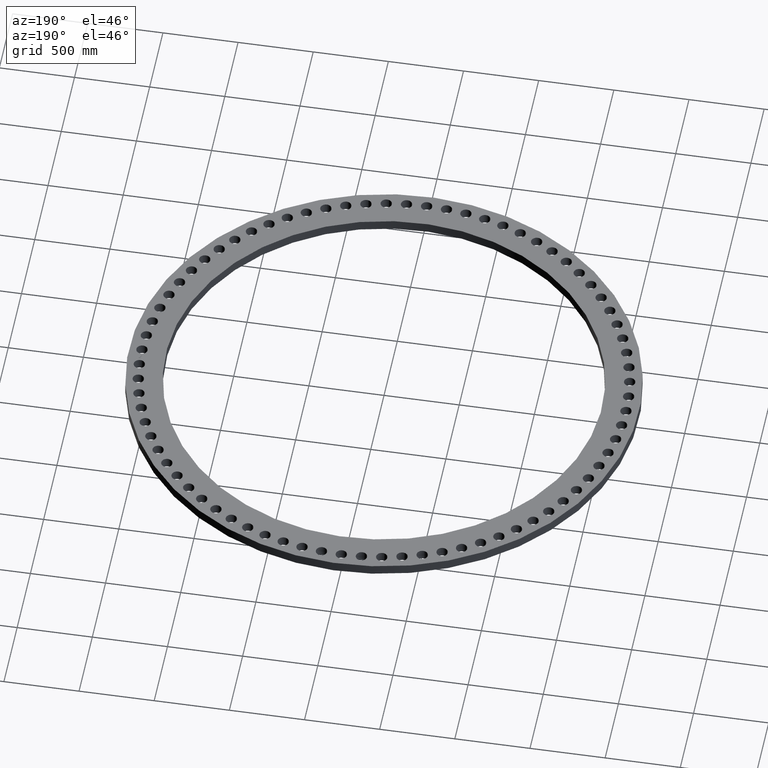
[diagram: clean part render]
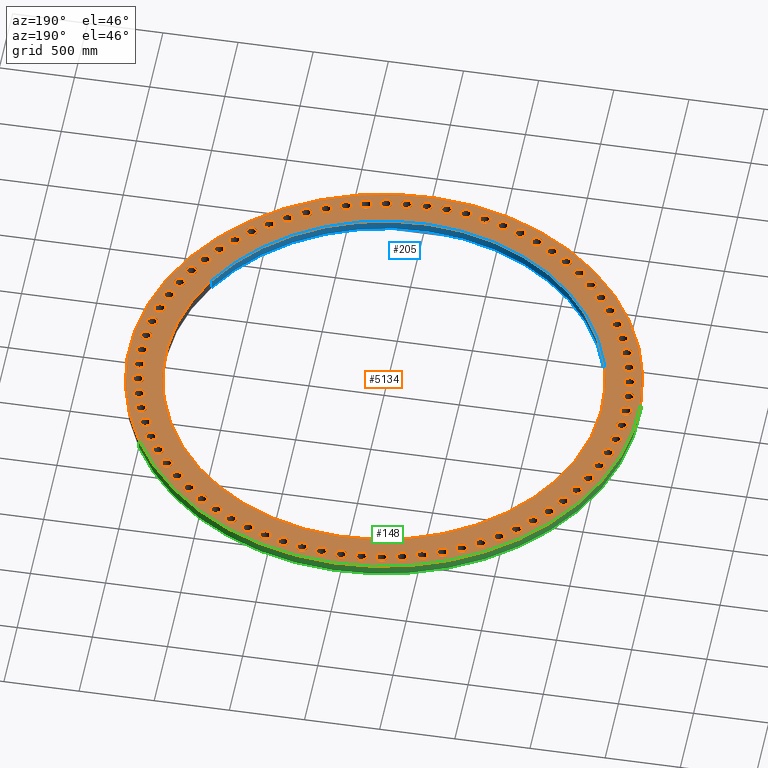
[diagram: same view with three faces highlighted in distinct colors, each labeled with its STEP entity id]
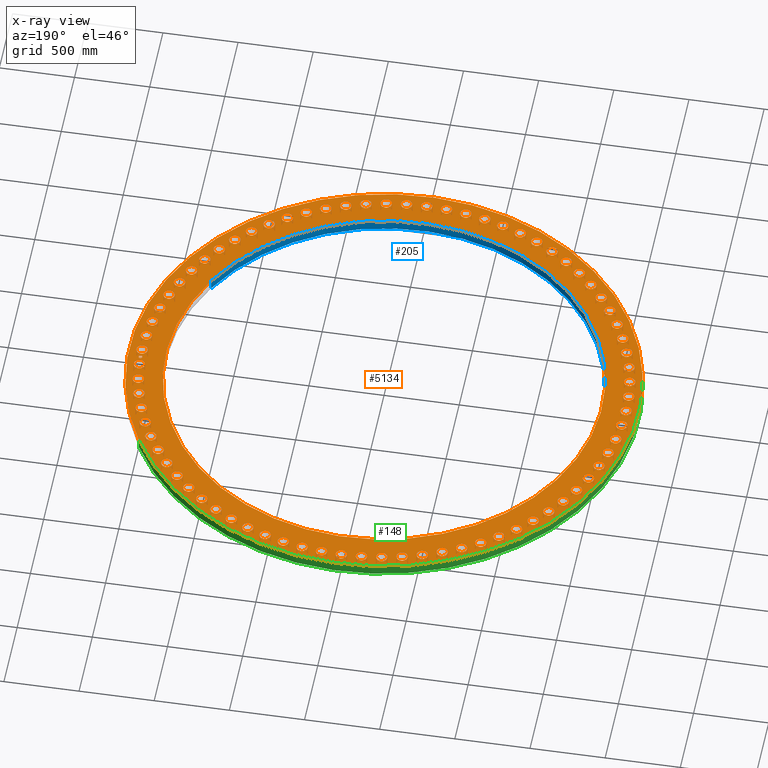
[diagram: x-ray of the same camera — body ghosted, the three highlighted faces saturated]
A machine part, auxiliary view with three faces highlighted in distinct colors.
The next image is the same camera in x-ray (body ghosted, the three faces saturated) — at least one of them is partly hidden behind the body in this view.
Their STEP definitions:

[orange] entity #5134 — the highlighted planar face has unit normal (0, 0, 1).
#65=AXIS2_PLACEMENT_3D('Circle Axis2P3D',#63,#64,$) ;
#82=AXIS2_PLACEMENT_3D('Circle Axis2P3D',#80,#81,$) ;
#108=AXIS2_PLACEMENT_3D('Circle Axis2P3D',#106,#107,$) ;
#134=AXIS2_PLACEMENT_3D('Circle Axis2P3D',#132,#133,$) ;
#179=AXIS2_PLACEMENT_3D('Circle Axis2P3D',#177,#178,$) ;
#196=AXIS2_PLACEMENT_3D('Circle Axis2P3D',#194,#195,$) ;
#1595=AXIS2_PLACEMENT_3D('Circle Axis2P3D',#1593,#1594,$) ;
#1607=AXIS2_PLACEMENT_3D('Circle Axis2P3D',#1605,#1606,$) ;
#1638=AXIS2_PLACEMENT_3D('Circle Axis2P3D',#1636,#1637,$) ;
#1650=AXIS2_PLACEMENT_3D('Circle Axis2P3D',#1648,#1649,$) ;
#1681=AXIS2_PLACEMENT_3D('Circle Axis2P3D',#1679,#1680,$) ;
#1693=AXIS2_PLACEMENT_3D('Circle Axis2P3D',#1691,#1692,$) ;
#1724=AXIS2_PLACEMENT_3D('Circle Axis2P3D',#1722,#1723,$) ;
#1736=AXIS2_PLACEMENT_3D('Circle Axis2P3D',#1734,#1735,$) ;
#1767=AXIS2_PLACEMENT_3D('Circle Axis2P3D',#1765,#1766,$) ;
#1779=AXIS2_PLACEMENT_3D('Circle Axis2P3D',#1777,#1778,$) ;
#1810=AXIS2_PLACEMENT_3D('Circle Axis2P3D',#1808,#1809,$) ;
#1822=AXIS2_PLACEMENT_3D('Circle Axis2P3D',#1820,#1821,$) ;
#1853=AXIS2_PLACEMENT_3D('Circle Axis2P3D',#1851,#1852,$) ;
#1865=AXIS2_PLACEMENT_3D('Circle Axis2P3D',#1863,#1864,$) ;
#1896=AXIS2_PLACEMENT_3D('Circle Axis2P3D',#1894,#1895,$) ;
#1908=AXIS2_PLACEMENT_3D('Circle Axis2P3D',#1906,#1907,$) ;
#1939=AXIS2_PLACEMENT_3D('Circle Axis2P3D',#1937,#1938,$) ;
#1951=AXIS2_PLACEMENT_3D('Circle Axis2P3D',#1949,#1950,$) ;
#1982=AXIS2_PLACEMENT_3D('Circle Axis2P3D',#1980,#1981,$) ;
#1994=AXIS2_PLACEMENT_3D('Circle Axis2P3D',#1992,#1993,$) ;
#2025=AXIS2_PLACEMENT_3D('Circle Axis2P3D',#2023,#2024,$) ;
#2037=AXIS2_PLACEMENT_3D('Circle Axis2P3D',#2035,#2036,$) ;
#2068=AXIS2_PLACEMENT_3D('Circle Axis2P3D',#2066,#2067,$) ;
#2080=AXIS2_PLACEMENT_3D('Circle Axis2P3D',#2078,#2079,$) ;
#2111=AXIS2_PLACEMENT_3D('Circle Axis2P3D',#2109,#2110,$) ;
#2123=AXIS2_PLACEMENT_3D('Circle Axis2P3D',#2121,#2122,$) ;
#2154=AXIS2_PLACEMENT_3D('Circle Axis2P3D',#2152,#2153,$) ;
#2166=AXIS2_PLACEMENT_3D('Circle Axis2P3D',#2164,#2165,$) ;
#2197=AXIS2_PLACEMENT_3D('Circle Axis2P3D',#2195,#2196,$) ;
#2209=AXIS2_PLACEMENT_3D('Circle Axis2P3D',#2207,#2208,$) ;
#2240=AXIS2_PLACEMENT_3D('Circle Axis2P3D',#2238,#2239,$) ;
#2252=AXIS2_PLACEMENT_3D('Circle Axis2P3D',#2250,#2251,$) ;
#2283=AXIS2_PLACEMENT_3D('Circle Axis2P3D',#2281,#2282,$) ;
#2295=AXIS2_PLACEMENT_3D('Circle Axis2P3D',#2293,#2294,$) ;
#2326=AXIS2_PLACEMENT_3D('Circle Axis2P3D',#2324,#2325,$) ;
#2338=AXIS2_PLACEMENT_3D('Circle Axis2P3D',#2336,#2337,$) ;
#2369=AXIS2_PLACEMENT_3D('Circle Axis2P3D',#2367,#2368,$) ;
#2381=AXIS2_PLACEMENT_3D('Circle Axis2P3D',#2379,#2380,$) ;
#2412=AXIS2_PLACEMENT_3D('Circle Axis2P3D',#2410,#2411,$) ;
#2424=AXIS2_PLACEMENT_3D('Circle Axis2P3D',#2422,#2423,$) ;
#2455=AXIS2_PLACEMENT_3D('Circle Axis2P3D',#2453,#2454,$) ;
#2467=AXIS2_PLACEMENT_3D('Circle Axis2P3D',#2465,#2466,$) ;
#2498=AXIS2_PLACEMENT_3D('Circle Axis2P3D',#2496,#2497,$) ;
#2510=AXIS2_PLACEMENT_3D('Circle Axis2P3D',#2508,#2509,$) ;
#2541=AXIS2_PLACEMENT_3D('Circle Axis2P3D',#2539,#2540,$) ;
#2553=AXIS2_PLACEMENT_3D('Circle Axis2P3D',#2551,#2552,$) ;
#2584=AXIS2_PLACEMENT_3D('Circle Axis2P3D',#2582,#2583,$) ;
#2596=AXIS2_PLACEMENT_3D('Circle Axis2P3D',#2594,#2595,$) ;
#2627=AXIS2_PLACEMENT_3D('Circle Axis2P3D',#2625,#2626,$) ;
#2639=AXIS2_PLACEMENT_3D('Circle Axis2P3D',#2637,#2638,$) ;
#2670=AXIS2_PLACEMENT_3D('Circle Axis2P3D',#2668,#2669,$) ;
#2682=AXIS2_PLACEMENT_3D('Circle Axis2P3D',#2680,#2681,$) ;
#2713=AXIS2_PLACEMENT_3D('Circle Axis2P3D',#2711,#2712,$) ;
#2725=AXIS2_PLACEMENT_3D('Circle Axis2P3D',#2723,#2724,$) ;
#2756=AXIS2_PLACEMENT_3D('Circle Axis2P3D',#2754,#2755,$) ;
#2768=AXIS2_PLACEMENT_3D('Circle Axis2P3D',#2766,#2767,$) ;
#2799=AXIS2_PLACEMENT_3D('Circle Axis2P3D',#2797,#2798,$) ;
#2811=AXIS2_PLACEMENT_3D('Circle Axis2P3D',#2809,#2810,$) ;
#2842=AXIS2_PLACEMENT_3D('Circle Axis2P3D',#2840,#2841,$) ;
#2854=AXIS2_PLACEMENT_3D('Circle Axis2P3D',#2852,#2853,$) ;
#2885=AXIS2_PLACEMENT_3D('Circle Axis2P3D',#2883,#2884,$) ;
#2897=AXIS2_PLACEMENT_3D('Circle Axis2P3D',#2895,#2896,$) ;
#2928=AXIS2_PLACEMENT_3D('Circle Axis2P3D',#2926,#2927,$) ;
#2940=AXIS2_PLACEMENT_3D('Circle Axis2P3D',#2938,#2939,$) ;
#2971=AXIS2_PLACEMENT_3D('Circle Axis2P3D',#2969,#2970,$) ;
#2983=AXIS2_PLACEMENT_3D('Circle Axis2P3D',#2981,#2982,$) ;
#3014=AXIS2_PLACEMENT_3D('Circle Axis2P3D',#3012,#3013,$) ;
#3026=AXIS2_PLACEMENT_3D('Circle Axis2P3D',#3024,#3025,$) ;
#3057=AXIS2_PLACEMENT_3D('Circle Axis2P3D',#3055,#3056,$) ;
#3069=AXIS2_PLACEMENT_3D('Circle Axis2P3D',#3067,#3068,$) ;
#3100=AXIS2_PLACEMENT_3D('Circle Axis2P3D',#3098,#3099,$) ;
#3112=AXIS2_PLACEMENT_3D('Circle Axis2P3D',#3110,#3111,$) ;
#3143=AXIS2_PLACEMENT_3D('Circle Axis2P3D',#3141,#3142,$) ;
#3155=AXIS2_PLACEMENT_3D('Circle Axis2P3D',#3153,#3154,$) ;
#3186=AXIS2_PLACEMENT_3D('Circle Axis2P3D',#3184,#3185,$) ;
#3198=AXIS2_PLACEMENT_3D('Circle Axis2P3D',#3196,#3197,$) ;
#3229=AXIS2_PLACEMENT_3D('Circle Axis2P3D',#3227,#3228,$) ;
#3241=AXIS2_PLACEMENT_3D('Circle Axis2P3D',#3239,#3240,$) ;
#3272=AXIS2_PLACEMENT_3D('Circle Axis2P3D',#3270,#3271,$) ;
#3284=AXIS2_PLACEMENT_3D('Circle Axis2P3D',#3282,#3283,$) ;
#3315=AXIS2_PLACEMENT_3D('Circle Axis2P3D',#3313,#3314,$) ;
#3327=AXIS2_PLACEMENT_3D('Circle Axis2P3D',#3325,#3326,$) ;
#3358=AXIS2_PLACEMENT_3D('Circle Axis2P3D',#3356,#3357,$) ;
#3370=AXIS2_PLACEMENT_3D('Circle Axis2P3D',#3368,#3369,$) ;
#3401=AXIS2_PLACEMENT_3D('Circle Axis2P3D',#3399,#3400,$) ;
#3413=AXIS2_PLACEMENT_3D('Circle Axis2P3D',#3411,#3412,$) ;
#3444=AXIS2_PLACEMENT_3D('Circle Axis2P3D',#3442,#3443,$) ;
#3456=AXIS2_PLACEMENT_3D('Circle Axis2P3D',#3454,#3455,$) ;
#3487=AXIS2_PLACEMENT_3D('Circle Axis2P3D',#3485,#3486,$) ;
#3499=AXIS2_PLACEMENT_3D('Circle Axis2P3D',#3497,#3498,$) ;
#3530=AXIS2_PLACEMENT_3D('Circle Axis2P3D',#3528,#3529,$) ;
#3542=AXIS2_PLACEMENT_3D('Circle Axis2P3D',#3540,#3541,$) ;
#3573=AXIS2_PLACEMENT_3D('Circle Axis2P3D',#3571,#3572,$) ;
#3585=AXIS2_PLACEMENT_3D('Circle Axis2P3D',#3583,#3584,$) ;
#3616=AXIS2_PLACEMENT_3D('Circle Axis2P3D',#3614,#3615,$) ;
#3628=AXIS2_PLACEMENT_3D('Circle Axis2P3D',#3626,#3627,$) ;
#3659=AXIS2_PLACEMENT_3D('Circle Axis2P3D',#3657,#3658,$) ;
#3671=AXIS2_PLACEMENT_3D('Circle Axis2P3D',#3669,#3670,$) ;
#3702=AXIS2_PLACEMENT_3D('Circle Axis2P3D',#3700,#3701,$) ;
#3714=AXIS2_PLACEMENT_3D('Circle Axis2P3D',#3712,#3713,$) ;
#3745=AXIS2_PLACEMENT_3D('Circle Axis2P3D',#3743,#3744,$) ;
#3757=AXIS2_PLACEMENT_3D('Circle Axis2P3D',#3755,#3756,$) ;
#3788=AXIS2_PLACEMENT_3D('Circle Axis2P3D',#3786,#3787,$) ;
#3800=AXIS2_PLACEMENT_3D('Circle Axis2P3D',#3798,#3799,$) ;
#3831=AXIS2_PLACEMENT_3D('Circle Axis2P3D',#3829,#3830,$) ;
#3843=AXIS2_PLACEMENT_3D('Circle Axis2P3D',#3841,#3842,$) ;
#3874=AXIS2_PLACEMENT_3D('Circle Axis2P3D',#3872,#3873,$) ;
#3886=AXIS2_PLACEMENT_3D('Circle Axis2P3D',#3884,#3885,$) ;
#3917=AXIS2_PLACEMENT_3D('Circle Axis2P3D',#3915,#3916,$) ;
#3929=AXIS2_PLACEMENT_3D('Circle Axis2P3D',#3927,#3928,$) ;
#3960=AXIS2_PLACEMENT_3D('Circle Axis2P3D',#3958,#3959,$) ;
#3972=AXIS2_PLACEMENT_3D('Circle Axis2P3D',#3970,#3971,$) ;
#4003=AXIS2_PLACEMENT_3D('Circle Axis2P3D',#4001,#4002,$) ;
#4015=AXIS2_PLACEMENT_3D('Circle Axis2P3D',#4013,#4014,$) ;
#4046=AXIS2_PLACEMENT_3D('Circle Axis2P3D',#4044,#4045,$) ;
#4058=AXIS2_PLACEMENT_3D('Circle Axis2P3D',#4056,#4057,$) ;
#4089=AXIS2_PLACEMENT_3D('Circle Axis2P3D',#4087,#4088,$) ;
#4101=AXIS2_PLACEMENT_3D('Circle Axis2P3D',#4099,#4100,$) ;
#4132=AXIS2_PLACEMENT_3D('Circle Axis2P3D',#4130,#4131,$) ;
#4144=AXIS2_PLACEMENT_3D('Circle Axis2P3D',#4142,#4143,$) ;
#4175=AXIS2_PLACEMENT_3D('Circle Axis2P3D',#4173,#4174,$) ;
#4187=AXIS2_PLACEMENT_3D('Circle Axis2P3D',#4185,#4186,$) ;
#4218=AXIS2_PLACEMENT_3D('Circle Axis2P3D',#4216,#4217,$) ;
#4230=AXIS2_PLACEMENT_3D('Circle Axis2P3D',#4228,#4229,$) ;
#4261=AXIS2_PLACEMENT_3D('Circle Axis2P3D',#4259,#4260,$) ;
#4273=AXIS2_PLACEMENT_3D('Circle Axis2P3D',#4271,#4272,$) ;
#4304=AXIS2_PLACEMENT_3D('Circle Axis2P3D',#4302,#4303,$) ;
#4316=AXIS2_PLACEMENT_3D('Circle Axis2P3D',#4314,#4315,$) ;
#4347=AXIS2_PLACEMENT_3D('Circle Axis2P3D',#4345,#4346,$) ;
#4359=AXIS2_PLACEMENT_3D('Circle Axis2P3D',#4357,#4358,$) ;
#4390=AXIS2_PLACEMENT_3D('Circle Axis2P3D',#4388,#4389,$) ;
#4402=AXIS2_PLACEMENT_3D('Circle Axis2P3D',#4400,#4401,$) ;
#4433=AXIS2_PLACEMENT_3D('Circle Axis2P3D',#4431,#4432,$) ;
#4445=AXIS2_PLACEMENT_3D('Circle Axis2P3D',#4443,#4444,$) ;
#4476=AXIS2_PLACEMENT_3D('Circle Axis2P3D',#4474,#4475,$) ;
#4488=AXIS2_PLACEMENT_3D('Circle Axis2P3D',#4486,#4487,$) ;
#4519=AXIS2_PLACEMENT_3D('Circle Axis2P3D',#4517,#4518,$) ;
#4531=AXIS2_PLACEMENT_3D('Circle Axis2P3D',#4529,#4530,$) ;
#4562=AXIS2_PLACEMENT_3D('Circle Axis2P3D',#4560,#4561,$) ;
#4574=AXIS2_PLACEMENT_3D('Circle Axis2P3D',#4572,#4573,$) ;
#4605=AXIS2_PLACEMENT_3D('Circle Axis2P3D',#4603,#4604,$) ;
#4617=AXIS2_PLACEMENT_3D('Circle Axis2P3D',#4615,#4616,$) ;
#4648=AXIS2_PLACEMENT_3D('Circle Axis2P3D',#4646,#4647,$) ;
#4660=AXIS2_PLACEMENT_3D('Circle Axis2P3D',#4658,#4659,$) ;
#4691=AXIS2_PLACEMENT_3D('Circle Axis2P3D',#4689,#4690,$) ;
#4703=AXIS2_PLACEMENT_3D('Circle Axis2P3D',#4701,#4702,$) ;
#4734=AXIS2_PLACEMENT_3D('Circle Axis2P3D',#4732,#4733,$) ;
#4746=AXIS2_PLACEMENT_3D('Circle Axis2P3D',#4744,#4745,$) ;
#4777=AXIS2_PLACEMENT_3D('Circle Axis2P3D',#4775,#4776,$) ;
#4789=AXIS2_PLACEMENT_3D('Circle Axis2P3D',#4787,#4788,$) ;
#4802=AXIS2_PLACEMENT_3D('Plane Axis2P3D',#4799,#4800,#4801) ;
#5118=AXIS2_PLACEMENT_3D('Circle Axis2P3D',#5116,#5117,$) ;
#5127=AXIS2_PLACEMENT_3D('Circle Axis2P3D',#5125,#5126,$) ;
#46=CARTESIAN_POINT('Vertex',(62.0858312168,0.704276116212,2.75000000001)) ;
#60=CARTESIAN_POINT('Vertex',(64.6641687837,-0.704276116212,2.75000000001)) ;
#63=CARTESIAN_POINT('Axis2P3D Location',(63.3750000003,0.,2.75000000001)) ;
#80=CARTESIAN_POINT('Axis2P3D Location',(63.3750000003,0.,2.75000000001)) ;
#103=CARTESIAN_POINT('Vertex',(58.5786360064,32.001654702,2.75000000001)) ;
#106=CARTESIAN_POINT('Axis2P3D Location',(0.,0.,2.75000000001)) ;
#110=CARTESIAN_POINT('Vertex',(-58.5786360064,-32.001654702,2.75000000001)) ;
#132=CARTESIAN_POINT('Axis2P3D Location',(0.,0.,2.75000000001)) ;
#160=CARTESIAN_POINT('Vertex',(-50.1055763713,27.3728011267,2.75000000001)) ;
#174=CARTESIAN_POINT('Vertex',(50.1055763713,-27.3728011267,2.75000000001)) ;
#177=CARTESIAN_POINT('Axis2P3D Location',(-6.64385432059E-016,-2.09805925913E-016,2.75000000001)) ;
#194=CARTESIAN_POINT('Axis2P3D Location',(-6.64385432059E-016,-2.09805925913E-016,2.75000000001)) ;
#1583=CARTESIAN_POINT('Vertex',(61.8156179654,5.8288779612,2.75000000001)) ;
#1590=CARTESIAN_POINT('Vertex',(64.5014665237,4.63805407746,2.75000000001)) ;
#1593=CARTESIAN_POINT('Axis2P3D Location',(63.1585422446,5.23346601933,2.75000000001)) ;
#1605=CARTESIAN_POINT('Axis2P3D Location',(63.1585422446,5.23346601933,2.75000000001)) ;
#1626=CARTESIAN_POINT('Vertex',(61.1231413631,10.9136626593,2.75000000001)) ;
#1633=CARTESIAN_POINT('Vertex',(63.8981538437,9.94870165885,2.75000000001)) ;
#1636=CARTESIAN_POINT('Axis2P3D Location',(62.5106476034,10.4311821591,2.75000000001)) ;
#1648=CARTESIAN_POINT('Axis2P3D Location',(62.5106476034,10.4311821591,2.75000000001)) ;
#1669=CARTESIAN_POINT('Vertex',(60.0131317272,15.9238959752,2.75000000001)) ;
#1676=CARTESIAN_POINT('Vertex',(62.8583519811,15.1913895201,2.75000000001)) ;
#1679=CARTESIAN_POINT('Axis2P3D Location',(61.4357418542,15.5576427476,2.75000000001)) ;
#1691=CARTESIAN_POINT('Axis2P3D Location',(61.4357418542,15.5576427476,2.75000000001)) ;
#1712=CARTESIAN_POINT('Vertex',(58.4931715491,20.8253529349,2.75000000001)) ;
#1719=CARTESIAN_POINT('Vertex',(61.3891638369,20.330304787,2.75000000001)) ;
#1722=CARTESIAN_POINT('Axis2P3D Location',(59.941167693,20.5778288609,2.75000000001)) ;
#1734=CARTESIAN_POINT('Axis2P3D Location',(59.941167693,20.5778288609,2.75000000001)) ;
#1755=CARTESIAN_POINT('Vertex',(56.573643698,25.5845516174,2.75000000001)) ;
#1762=CARTESIAN_POINT('Vertex',(59.500625456,25.3303434576,2.75000000001)) ;
#1765=CARTESIAN_POINT('Axis2P3D Location',(58.037134577,25.4574475375,2.75000000001)) ;
#1777=CARTESIAN_POINT('Axis2P3D Location',(58.037134577,25.4574475375,2.75000000001)) ;
#1798=CARTESIAN_POINT('Vertex',(54.2676604956,30.16898187,2.75000000001)) ;
#1805=CARTESIAN_POINT('Vertex',(57.2056374703,30.1573501977,2.75000000001)) ;
#1808=CARTESIAN_POINT('Axis2P3D Location',(55.7366489829,30.1631660338,2.75000000001)) ;
#1820=CARTESIAN_POINT('Axis2P3D Location',(55.7366489829,30.1631660338,2.75000000001)) ;
#1841=CARTESIAN_POINT('Vertex',(51.5909741452,34.5473273855,2.75000000001)) ;
#1848=CARTESIAN_POINT('Vertex',(54.519876975,34.7783516568,2.75000000001)) ;
#1851=CARTESIAN_POINT('Axis2P3D Location',(53.0554255601,34.6628395211,2.75000000001)) ;
#1863=CARTESIAN_POINT('Axis2P3D Location',(53.0554255601,34.6628395211,2.75000000001)) ;
#1884=CARTESIAN_POINT('Vertex',(48.5618691289,38.6896796244,2.75000000001)) ;
#1891=CARTESIAN_POINT('Vertex',(51.4616904375,39.1617817093,2.75000000001)) ;
#1894=CARTESIAN_POINT('Axis2P3D Location',(50.0117797832,38.9257306669,2.75000000001)) ;
#1906=CARTESIAN_POINT('Axis2P3D Location',(50.0117797832,38.9257306669,2.75000000001)) ;
#1927=CARTESIAN_POINT('Vertex',(45.2010373054,42.5677421206,2.75000000001)) ;
#1934=CARTESIAN_POINT('Vertex',(48.0519683728,43.2776970833,2.75000000001)) ;
#1937=CARTESIAN_POINT('Axis2P3D Location',(46.6265028391,42.922719602,2.75000000001)) ;
#1949=CARTESIAN_POINT('Axis2P3D Location',(46.6265028391,42.922719602,2.75000000001)) ;
#1970=CARTESIAN_POINT('Vertex',(41.5314365638,46.1550237751,2.75000000001)) ;
#1977=CARTESIAN_POINT('Vertex',(44.3140026401,47.0979819031,2.75000000001)) ;
#1980=CARTESIAN_POINT('Axis2P3D Location',(42.922719602,46.6265028391,2.75000000001)) ;
#1992=CARTESIAN_POINT('Axis2P3D Location',(42.922719602,46.6265028391,2.75000000001)) ;
#2013=CARTESIAN_POINT('Vertex',(37.5781339982,49.4270198166,2.75000000001)) ;
#2020=CARTESIAN_POINT('Vertex',(40.2733273355,50.5965397498,2.75000000001)) ;
#2023=CARTESIAN_POINT('Axis2P3D Location',(38.9257306669,50.0117797832,2.75000000001)) ;
#2035=CARTESIAN_POINT('Axis2P3D Location',(38.9257306669,50.0117797832,2.75000000001)) ;
#2056=CARTESIAN_POINT('Vertex',(33.3681346736,52.3613791944,2.75000000001)) ;
#2063=CARTESIAN_POINT('Vertex',(35.9575443687,53.7494719258,2.75000000001)) ;
#2066=CARTESIAN_POINT('Axis2P3D Location',(34.6628395211,53.0554255601,2.75000000001)) ;
#2078=CARTESIAN_POINT('Axis2P3D Location',(34.6628395211,53.0554255601,2.75000000001)) ;
#2099=CARTESIAN_POINT('Vertex',(28.9301971544,54.9380572585,2.75000000001)) ;
#2106=CARTESIAN_POINT('Vertex',(31.3961349133,56.5352407073,2.75000000001)) ;
#2109=CARTESIAN_POINT('Axis2P3D Location',(30.1631660338,55.7366489829,2.75000000001)) ;
#2121=CARTESIAN_POINT('Axis2P3D Location',(30.1631660338,55.7366489829,2.75000000001)) ;
#2142=CARTESIAN_POINT('Vertex',(24.2946370538,57.1394526852,2.75000000001)) ;
#2149=CARTESIAN_POINT('Vertex',(26.6202580212,58.9348164688,2.75000000001)) ;
#2152=CARTESIAN_POINT('Axis2P3D Location',(25.4574475375,58.037134577,2.75000000001)) ;
#2164=CARTESIAN_POINT('Axis2P3D Location',(25.4574475375,58.037134577,2.75000000001)) ;
#2185=CARTESIAN_POINT('Vertex',(19.4931199476,58.9505277113,2.75000000001)) ;
#2192=CARTESIAN_POINT('Vertex',(21.6625377743,60.9318076747,2.75000000001)) ;
#2195=CARTESIAN_POINT('Axis2P3D Location',(20.5778288609,59.941167693,2.75000000001)) ;
#2207=CARTESIAN_POINT('Axis2P3D Location',(20.5778288609,59.941167693,2.75000000001)) ;
#2228=CARTESIAN_POINT('Vertex',(14.5584450665,60.3589108581,2.75000000001)) ;
#2235=CARTESIAN_POINT('Vertex',(16.5568404288,62.5125728502,2.75000000001)) ;
#2238=CARTESIAN_POINT('Axis2P3D Location',(15.5576427476,61.4357418542,2.75000000001)) ;
#2250=CARTESIAN_POINT('Axis2P3D Location',(15.5576427476,61.4357418542,2.75000000001)) ;
#2271=CARTESIAN_POINT('Vertex',(9.52432124343,61.3549814407,2.75000000001)) ;
#2278=CARTESIAN_POINT('Vertex',(11.3380430747,63.6663137661,2.75000000001)) ;
#2281=CARTESIAN_POINT('Axis2P3D Location',(10.4311821591,62.5106476034,2.75000000001)) ;
#2293=CARTESIAN_POINT('Axis2P3D Location',(10.4311821591,62.5106476034,2.75000000001)) ;
#2314=CARTESIAN_POINT('Vertex',(4.42513664878,61.9319352868,2.75000000001)) ;
#2321=CARTESIAN_POINT('Vertex',(6.04179538988,64.3851492023,2.75000000001)) ;
#2324=CARTESIAN_POINT('Axis2P3D Location',(5.23346601933,63.1585422446,2.75000000001)) ;
#2336=CARTESIAN_POINT('Axis2P3D Location',(5.23346601933,63.1585422446,2.75000000001)) ;
#2357=CARTESIAN_POINT('Vertex',(-0.704276116212,62.0858312168,2.75000000001)) ;
#2364=CARTESIAN_POINT('Vertex',(0.704276116212,64.6641687837,2.75000000001)) ;
#2367=CARTESIAN_POINT('Axis2P3D Location',(-5.07111996083E-015,63.3750000003,2.75000000001)) ;
#2379=CARTESIAN_POINT('Axis2P3D Location',(-5.07111996083E-015,63.3750000003,2.75000000001)) ;
#2400=CARTESIAN_POINT('Vertex',(-5.8288779612,61.8156179654,2.75000000001)) ;
#2407=CARTESIAN_POINT('Vertex',(-4.63805407746,64.5014665237,2.75000000001)) ;
#2410=CARTESIAN_POINT('Axis2P3D Location',(-5.23346601933,63.1585422446,2.75000000001)) ;
#2422=CARTESIAN_POINT('Axis2P3D Location',(-5.23346601933,63.1585422446,2.75000000001)) ;
#2443=CARTESIAN_POINT('Vertex',(-10.9136626593,61.1231413631,2.75000000001)) ;
#2450=CARTESIAN_POINT('Vertex',(-9.94870165885,63.8981538437,2.75000000001)) ;
#2453=CARTESIAN_POINT('Axis2P3D Location',(-10.4311821591,62.5106476034,2.75000000001)) ;
#2465=CARTESIAN_POINT('Axis2P3D Location',(-10.4311821591,62.5106476034,2.75000000001)) ;
#2486=CARTESIAN_POINT('Vertex',(-15.9238959752,60.0131317272,2.75000000001)) ;
#2493=CARTESIAN_POINT('Vertex',(-15.1913895201,62.8583519811,2.75000000001)) ;
#2496=CARTESIAN_POINT('Axis2P3D Location',(-15.5576427476,61.4357418542,2.75000000001)) ;
#2508=CARTESIAN_POINT('Axis2P3D Location',(-15.5576427476,61.4357418542,2.75000000001)) ;
#2529=CARTESIAN_POINT('Vertex',(-20.8253529349,58.4931715491,2.75000000001)) ;
#2536=CARTESIAN_POINT('Vertex',(-20.330304787,61.3891638369,2.75000000001)) ;
#2539=CARTESIAN_POINT('Axis2P3D Location',(-20.5778288609,59.941167693,2.75000000001)) ;
#2551=CARTESIAN_POINT('Axis2P3D Location',(-20.5778288609,59.941167693,2.75000000001)) ;
#2572=CARTESIAN_POINT('Vertex',(-25.5845516174,56.573643698,2.75000000001)) ;
#2579=CARTESIAN_POINT('Vertex',(-25.3303434576,59.500625456,2.75000000001)) ;
#2582=CARTESIAN_POINT('Axis2P3D Location',(-25.4574475375,58.037134577,2.75000000001)) ;
#2594=CARTESIAN_POINT('Axis2P3D Location',(-25.4574475375,58.037134577,2.75000000001)) ;
#2615=CARTESIAN_POINT('Vertex',(-30.16898187,54.2676604956,2.75000000001)) ;
#2622=CARTESIAN_POINT('Vertex',(-30.1573501977,57.2056374703,2.75000000001)) ;
#2625=CARTESIAN_POINT('Axis2P3D Location',(-30.1631660338,55.7366489829,2.75000000001)) ;
#2637=CARTESIAN_POINT('Axis2P3D Location',(-30.1631660338,55.7366489829,2.75000000001)) ;
#2658=CARTESIAN_POINT('Vertex',(-34.5473273855,51.5909741452,2.75000000001)) ;
#2665=CARTESIAN_POINT('Vertex',(-34.7783516568,54.519876975,2.75000000001)) ;
#2668=CARTESIAN_POINT('Axis2P3D Location',(-34.6628395211,53.0554255601,2.75000000001)) ;
#2680=CARTESIAN_POINT('Axis2P3D Location',(-34.6628395211,53.0554255601,2.75000000001)) ;
#2701=CARTESIAN_POINT('Vertex',(-38.6896796244,48.5618691289,2.75000000001)) ;
#2708=CARTESIAN_POINT('Vertex',(-39.1617817093,51.4616904375,2.75000000001)) ;
#2711=CARTESIAN_POINT('Axis2P3D Location',(-38.9257306669,50.0117797832,2.75000000001)) ;
#2723=CARTESIAN_POINT('Axis2P3D Location',(-38.9257306669,50.0117797832,2.75000000001)) ;
#2744=CARTESIAN_POINT('Vertex',(-42.5677421206,45.2010373054,2.75000000001)) ;
#2751=CARTESIAN_POINT('Vertex',(-43.2776970833,48.0519683728,2.75000000001)) ;
#2754=CARTESIAN_POINT('Axis2P3D Location',(-42.922719602,46.6265028391,2.75000000001)) ;
#2766=CARTESIAN_POINT('Axis2P3D Location',(-42.922719602,46.6265028391,2.75000000001)) ;
#2787=CARTESIAN_POINT('Vertex',(-46.1550237751,41.5314365638,2.75000000001)) ;
#2794=CARTESIAN_POINT('Vertex',(-47.0979819031,44.3140026401,2.75000000001)) ;
#2797=CARTESIAN_POINT('Axis2P3D Location',(-46.6265028391,42.922719602,2.75000000001)) ;
#2809=CARTESIAN_POINT('Axis2P3D Location',(-46.6265028391,42.922719602,2.75000000001)) ;
#2830=CARTESIAN_POINT('Vertex',(-49.4270198166,37.5781339982,2.75000000001)) ;
#2837=CARTESIAN_POINT('Vertex',(-50.5965397498,40.2733273355,2.75000000001)) ;
#2840=CARTESIAN_POINT('Axis2P3D Location',(-50.0117797832,38.9257306669,2.75000000001)) ;
#2852=CARTESIAN_POINT('Axis2P3D Location',(-50.0117797832,38.9257306669,2.75000000001)) ;
#2873=CARTESIAN_POINT('Vertex',(-52.3613791944,33.3681346736,2.75000000001)) ;
#2880=CARTESIAN_POINT('Vertex',(-53.7494719258,35.9575443687,2.75000000001)) ;
#2883=CARTESIAN_POINT('Axis2P3D Location',(-53.0554255601,34.6628395211,2.75000000001)) ;
#2895=CARTESIAN_POINT('Axis2P3D Location',(-53.0554255601,34.6628395211,2.75000000001)) ;
#2916=CARTESIAN_POINT('Vertex',(-54.9380572585,28.9301971544,2.75000000001)) ;
#2923=CARTESIAN_POINT('Vertex',(-56.5352407073,31.3961349133,2.75000000001)) ;
#2926=CARTESIAN_POINT('Axis2P3D Location',(-55.7366489829,30.1631660338,2.75000000001)) ;
#2938=CARTESIAN_POINT('Axis2P3D Location',(-55.7366489829,30.1631660338,2.75000000001)) ;
#2959=CARTESIAN_POINT('Vertex',(-57.1394526852,24.2946370538,2.75000000001)) ;
#2966=CARTESIAN_POINT('Vertex',(-58.9348164688,26.6202580212,2.75000000001)) ;
#2969=CARTESIAN_POINT('Axis2P3D Location',(-58.037134577,25.4574475375,2.75000000001)) ;
#2981=CARTESIAN_POINT('Axis2P3D Location',(-58.037134577,25.4574475375,2.75000000001)) ;
#3002=CARTESIAN_POINT('Vertex',(-58.9505277113,19.4931199476,2.75000000001)) ;
#3009=CARTESIAN_POINT('Vertex',(-60.9318076747,21.6625377743,2.75000000001)) ;
#3012=CARTESIAN_POINT('Axis2P3D Location',(-59.941167693,20.5778288609,2.75000000001)) ;
#3024=CARTESIAN_POINT('Axis2P3D Location',(-59.941167693,20.5778288609,2.75000000001)) ;
#3045=CARTESIAN_POINT('Vertex',(-60.3589108581,14.5584450665,2.75000000001)) ;
#3052=CARTESIAN_POINT('Vertex',(-62.5125728502,16.5568404288,2.75000000001)) ;
#3055=CARTESIAN_POINT('Axis2P3D Location',(-61.4357418542,15.5576427476,2.75000000001)) ;
#3067=CARTESIAN_POINT('Axis2P3D Location',(-61.4357418542,15.5576427476,2.75000000001)) ;
#3088=CARTESIAN_POINT('Vertex',(-61.3549814407,9.52432124343,2.75000000001)) ;
#3095=CARTESIAN_POINT('Vertex',(-63.6663137661,11.3380430747,2.75000000001)) ;
#3098=CARTESIAN_POINT('Axis2P3D Location',(-62.5106476034,10.4311821591,2.75000000001)) ;
#3110=CARTESIAN_POINT('Axis2P3D Location',(-62.5106476034,10.4311821591,2.75000000001)) ;
#3131=CARTESIAN_POINT('Vertex',(-61.9319352868,4.42513664878,2.75000000001)) ;
#3138=CARTESIAN_POINT('Vertex',(-64.3851492023,6.04179538988,2.75000000001)) ;
#3141=CARTESIAN_POINT('Axis2P3D Location',(-63.1585422446,5.23346601933,2.75000000001)) ;
#3153=CARTESIAN_POINT('Axis2P3D Location',(-63.1585422446,5.23346601933,2.75000000001)) ;
#3174=CARTESIAN_POINT('Vertex',(-62.0858312168,-0.704276116212,2.75000000001)) ;
#3181=CARTESIAN_POINT('Vertex',(-64.6641687837,0.704276116212,2.75000000001)) ;
#3184=CARTESIAN_POINT('Axis2P3D Location',(-63.3750000003,7.76119908963E-015,2.75000000001)) ;
#3196=CARTESIAN_POINT('Axis2P3D Location',(-63.3750000003,7.76119908963E-015,2.75000000001)) ;
#3217=CARTESIAN_POINT('Vertex',(-61.8156179654,-5.8288779612,2.75000000001)) ;
#3224=CARTESIAN_POINT('Vertex',(-64.5014665237,-4.63805407746,2.75000000001)) ;
#3227=CARTESIAN_POINT('Axis2P3D Location',(-63.1585422446,-5.23346601933,2.75000000001)) ;
#3239=CARTESIAN_POINT('Axis2P3D Location',(-63.1585422446,-5.23346601933,2.75000000001)) ;
#3260=CARTESIAN_POINT('Vertex',(-61.1231413631,-10.9136626593,2.75000000001)) ;
#3267=CARTESIAN_POINT('Vertex',(-63.8981538437,-9.94870165885,2.75000000001)) ;
#3270=CARTESIAN_POINT('Axis2P3D Location',(-62.5106476034,-10.4311821591,2.75000000001)) ;
#3282=CARTESIAN_POINT('Axis2P3D Location',(-62.5106476034,-10.4311821591,2.75000000001)) ;
#3303=CARTESIAN_POINT('Vertex',(-60.0131317272,-15.9238959752,2.75000000001)) ;
#3310=CARTESIAN_POINT('Vertex',(-62.8583519811,-15.1913895201,2.75000000001)) ;
#3313=CARTESIAN_POINT('Axis2P3D Location',(-61.4357418542,-15.5576427476,2.75000000001)) ;
#3325=CARTESIAN_POINT('Axis2P3D Location',(-61.4357418542,-15.5576427476,2.75000000001)) ;
#3346=CARTESIAN_POINT('Vertex',(-58.4931715491,-20.8253529349,2.75000000001)) ;
#3353=CARTESIAN_POINT('Vertex',(-61.3891638369,-20.330304787,2.75000000001)) ;
#3356=CARTESIAN_POINT('Axis2P3D Location',(-59.941167693,-20.5778288609,2.75000000001)) ;
#3368=CARTESIAN_POINT('Axis2P3D Location',(-59.941167693,-20.5778288609,2.75000000001)) ;
#3389=CARTESIAN_POINT('Vertex',(-56.573643698,-25.5845516174,2.75000000001)) ;
#3396=CARTESIAN_POINT('Vertex',(-59.500625456,-25.3303434576,2.75000000001)) ;
#3399=CARTESIAN_POINT('Axis2P3D Location',(-58.037134577,-25.4574475375,2.75000000001)) ;
#3411=CARTESIAN_POINT('Axis2P3D Location',(-58.037134577,-25.4574475375,2.75000000001)) ;
#3432=CARTESIAN_POINT('Vertex',(-54.2676604956,-30.16898187,2.75000000001)) ;
#3439=CARTESIAN_POINT('Vertex',(-57.2056374703,-30.1573501977,2.75000000001)) ;
#3442=CARTESIAN_POINT('Axis2P3D Location',(-55.7366489829,-30.1631660338,2.75000000001)) ;
#3454=CARTESIAN_POINT('Axis2P3D Location',(-55.7366489829,-30.1631660338,2.75000000001)) ;
#3475=CARTESIAN_POINT('Vertex',(-51.5909741452,-34.5473273855,2.75000000001)) ;
#3482=CARTESIAN_POINT('Vertex',(-54.519876975,-34.7783516568,2.75000000001)) ;
#3485=CARTESIAN_POINT('Axis2P3D Location',(-53.0554255601,-34.6628395211,2.75000000001)) ;
#3497=CARTESIAN_POINT('Axis2P3D Location',(-53.0554255601,-34.6628395211,2.75000000001)) ;
#3518=CARTESIAN_POINT('Vertex',(-48.5618691289,-38.6896796244,2.75000000001)) ;
#3525=CARTESIAN_POINT('Vertex',(-51.4616904375,-39.1617817093,2.75000000001)) ;
#3528=CARTESIAN_POINT('Axis2P3D Location',(-50.0117797832,-38.9257306669,2.75000000001)) ;
#3540=CARTESIAN_POINT('Axis2P3D Location',(-50.0117797832,-38.9257306669,2.75000000001)) ;
#3561=CARTESIAN_POINT('Vertex',(-45.2010373054,-42.5677421206,2.75000000001)) ;
#3568=CARTESIAN_POINT('Vertex',(-48.0519683728,-43.2776970833,2.75000000001)) ;
#3571=CARTESIAN_POINT('Axis2P3D Location',(-46.6265028391,-42.922719602,2.75000000001)) ;
#3583=CARTESIAN_POINT('Axis2P3D Location',(-46.6265028391,-42.922719602,2.75000000001)) ;
#3604=CARTESIAN_POINT('Vertex',(-41.5314365638,-46.1550237751,2.75000000001)) ;
#3611=CARTESIAN_POINT('Vertex',(-44.3140026401,-47.0979819031,2.75000000001)) ;
#3614=CARTESIAN_POINT('Axis2P3D Location',(-42.922719602,-46.6265028391,2.75000000001)) ;
#3626=CARTESIAN_POINT('Axis2P3D Location',(-42.922719602,-46.6265028391,2.75000000001)) ;
#3647=CARTESIAN_POINT('Vertex',(-37.5781339982,-49.4270198166,2.75000000001)) ;
#3654=CARTESIAN_POINT('Vertex',(-40.2733273355,-50.5965397498,2.75000000001)) ;
#3657=CARTESIAN_POINT('Axis2P3D Location',(-38.9257306669,-50.0117797832,2.75000000001)) ;
#3669=CARTESIAN_POINT('Axis2P3D Location',(-38.9257306669,-50.0117797832,2.75000000001)) ;
#3690=CARTESIAN_POINT('Vertex',(-33.3681346736,-52.3613791944,2.75000000001)) ;
#3697=CARTESIAN_POINT('Vertex',(-35.9575443687,-53.7494719258,2.75000000001)) ;
#3700=CARTESIAN_POINT('Axis2P3D Location',(-34.6628395211,-53.0554255601,2.75000000001)) ;
#3712=CARTESIAN_POINT('Axis2P3D Location',(-34.6628395211,-53.0554255601,2.75000000001)) ;
#3733=CARTESIAN_POINT('Vertex',(-28.9301971544,-54.9380572585,2.75000000001)) ;
#3740=CARTESIAN_POINT('Vertex',(-31.3961349133,-56.5352407073,2.75000000001)) ;
#3743=CARTESIAN_POINT('Axis2P3D Location',(-30.1631660338,-55.7366489829,2.75000000001)) ;
#3755=CARTESIAN_POINT('Axis2P3D Location',(-30.1631660338,-55.7366489829,2.75000000001)) ;
#3776=CARTESIAN_POINT('Vertex',(-24.2946370538,-57.1394526852,2.75000000001)) ;
#3783=CARTESIAN_POINT('Vertex',(-26.6202580212,-58.9348164688,2.75000000001)) ;
#3786=CARTESIAN_POINT('Axis2P3D Location',(-25.4574475375,-58.037134577,2.75000000001)) ;
#3798=CARTESIAN_POINT('Axis2P3D Location',(-25.4574475375,-58.037134577,2.75000000001)) ;
#3819=CARTESIAN_POINT('Vertex',(-19.4931199476,-58.9505277113,2.75000000001)) ;
#3826=CARTESIAN_POINT('Vertex',(-21.6625377743,-60.9318076747,2.75000000001)) ;
#3829=CARTESIAN_POINT('Axis2P3D Location',(-20.5778288609,-59.941167693,2.75000000001)) ;
#3841=CARTESIAN_POINT('Axis2P3D Location',(-20.5778288609,-59.941167693,2.75000000001)) ;
#3862=CARTESIAN_POINT('Vertex',(-14.5584450665,-60.3589108581,2.75000000001)) ;
#3869=CARTESIAN_POINT('Vertex',(-16.5568404288,-62.5125728502,2.75000000001)) ;
#3872=CARTESIAN_POINT('Axis2P3D Location',(-15.5576427476,-61.4357418542,2.75000000001)) ;
#3884=CARTESIAN_POINT('Axis2P3D Location',(-15.5576427476,-61.4357418542,2.75000000001)) ;
#3905=CARTESIAN_POINT('Vertex',(-9.52432124343,-61.3549814407,2.75000000001)) ;
#3912=CARTESIAN_POINT('Vertex',(-11.3380430747,-63.6663137661,2.75000000001)) ;
#3915=CARTESIAN_POINT('Axis2P3D Location',(-10.4311821591,-62.5106476034,2.75000000001)) ;
#3927=CARTESIAN_POINT('Axis2P3D Location',(-10.4311821591,-62.5106476034,2.75000000001)) ;
#3948=CARTESIAN_POINT('Vertex',(-4.42513664878,-61.9319352868,2.75000000001)) ;
#3955=CARTESIAN_POINT('Vertex',(-6.04179538988,-64.3851492023,2.75000000001)) ;
#3958=CARTESIAN_POINT('Axis2P3D Location',(-5.23346601933,-63.1585422446,2.75000000001)) ;
#3970=CARTESIAN_POINT('Axis2P3D Location',(-5.23346601933,-63.1585422446,2.75000000001)) ;
#3991=CARTESIAN_POINT('Vertex',(0.704276116212,-62.0858312168,2.75000000001)) ;
#3998=CARTESIAN_POINT('Vertex',(-0.704276116212,-64.6641687837,2.75000000001)) ;
#4001=CARTESIAN_POINT('Axis2P3D Location',(-2.6900791288E-015,-63.3750000003,2.75000000001)) ;
#4013=CARTESIAN_POINT('Axis2P3D Location',(-2.6900791288E-015,-63.3750000003,2.75000000001)) ;
#4034=CARTESIAN_POINT('Vertex',(5.8288779612,-61.8156179654,2.75000000001)) ;
#4041=CARTESIAN_POINT('Vertex',(4.63805407746,-64.5014665237,2.75000000001)) ;
#4044=CARTESIAN_POINT('Axis2P3D Location',(5.23346601933,-63.1585422446,2.75000000001)) ;
#4056=CARTESIAN_POINT('Axis2P3D Location',(5.23346601933,-63.1585422446,2.75000000001)) ;
#4077=CARTESIAN_POINT('Vertex',(10.9136626593,-61.1231413631,2.75000000001)) ;
#4084=CARTESIAN_POINT('Vertex',(9.94870165885,-63.8981538437,2.75000000001)) ;
#4087=CARTESIAN_POINT('Axis2P3D Location',(10.4311821591,-62.5106476034,2.75000000001)) ;
#4099=CARTESIAN_POINT('Axis2P3D Location',(10.4311821591,-62.5106476034,2.75000000001)) ;
#4120=CARTESIAN_POINT('Vertex',(15.9238959752,-60.0131317272,2.75000000001)) ;
#4127=CARTESIAN_POINT('Vertex',(15.1913895201,-62.8583519811,2.75000000001)) ;
#4130=CARTESIAN_POINT('Axis2P3D Location',(15.5576427476,-61.4357418542,2.75000000001)) ;
#4142=CARTESIAN_POINT('Axis2P3D Location',(15.5576427476,-61.4357418542,2.75000000001)) ;
#4163=CARTESIAN_POINT('Vertex',(20.8253529349,-58.4931715491,2.75000000001)) ;
#4170=CARTESIAN_POINT('Vertex',(20.330304787,-61.3891638369,2.75000000001)) ;
#4173=CARTESIAN_POINT('Axis2P3D Location',(20.5778288609,-59.941167693,2.75000000001)) ;
#4185=CARTESIAN_POINT('Axis2P3D Location',(20.5778288609,-59.941167693,2.75000000001)) ;
#4206=CARTESIAN_POINT('Vertex',(25.5845516174,-56.573643698,2.75000000001)) ;
#4213=CARTESIAN_POINT('Vertex',(25.3303434576,-59.500625456,2.75000000001)) ;
#4216=CARTESIAN_POINT('Axis2P3D Location',(25.4574475375,-58.037134577,2.75000000001)) ;
#4228=CARTESIAN_POINT('Axis2P3D Location',(25.4574475375,-58.037134577,2.75000000001)) ;
#4249=CARTESIAN_POINT('Vertex',(30.16898187,-54.2676604956,2.75000000001)) ;
#4256=CARTESIAN_POINT('Vertex',(30.1573501977,-57.2056374703,2.75000000001)) ;
#4259=CARTESIAN_POINT('Axis2P3D Location',(30.1631660338,-55.7366489829,2.75000000001)) ;
#4271=CARTESIAN_POINT('Axis2P3D Location',(30.1631660338,-55.7366489829,2.75000000001)) ;
#4292=CARTESIAN_POINT('Vertex',(34.5473273855,-51.5909741452,2.75000000001)) ;
#4299=CARTESIAN_POINT('Vertex',(34.7783516568,-54.519876975,2.75000000001)) ;
#4302=CARTESIAN_POINT('Axis2P3D Location',(34.6628395211,-53.0554255601,2.75000000001)) ;
#4314=CARTESIAN_POINT('Axis2P3D Location',(34.6628395211,-53.0554255601,2.75000000001)) ;
#4335=CARTESIAN_POINT('Vertex',(38.6896796244,-48.5618691289,2.75000000001)) ;
#4342=CARTESIAN_POINT('Vertex',(39.1617817093,-51.4616904375,2.75000000001)) ;
#4345=CARTESIAN_POINT('Axis2P3D Location',(38.9257306669,-50.0117797832,2.75000000001)) ;
#4357=CARTESIAN_POINT('Axis2P3D Location',(38.9257306669,-50.0117797832,2.75000000001)) ;
#4378=CARTESIAN_POINT('Vertex',(42.5677421206,-45.2010373054,2.75000000001)) ;
#4385=CARTESIAN_POINT('Vertex',(43.2776970833,-48.0519683728,2.75000000001)) ;
#4388=CARTESIAN_POINT('Axis2P3D Location',(42.922719602,-46.6265028391,2.75000000001)) ;
#4400=CARTESIAN_POINT('Axis2P3D Location',(42.922719602,-46.6265028391,2.75000000001)) ;
#4421=CARTESIAN_POINT('Vertex',(46.1550237751,-41.5314365638,2.75000000001)) ;
#4428=CARTESIAN_POINT('Vertex',(47.0979819031,-44.3140026401,2.75000000001)) ;
#4431=CARTESIAN_POINT('Axis2P3D Location',(46.6265028391,-42.922719602,2.75000000001)) ;
#4443=CARTESIAN_POINT('Axis2P3D Location',(46.6265028391,-42.922719602,2.75000000001)) ;
#4464=CARTESIAN_POINT('Vertex',(49.4270198166,-37.5781339982,2.75000000001)) ;
#4471=CARTESIAN_POINT('Vertex',(50.5965397498,-40.2733273355,2.75000000001)) ;
#4474=CARTESIAN_POINT('Axis2P3D Location',(50.0117797832,-38.9257306669,2.75000000001)) ;
#4486=CARTESIAN_POINT('Axis2P3D Location',(50.0117797832,-38.9257306669,2.75000000001)) ;
#4507=CARTESIAN_POINT('Vertex',(52.3613791944,-33.3681346736,2.75000000001)) ;
#4514=CARTESIAN_POINT('Vertex',(53.7494719258,-35.9575443687,2.75000000001)) ;
#4517=CARTESIAN_POINT('Axis2P3D Location',(53.0554255601,-34.6628395211,2.75000000001)) ;
#4529=CARTESIAN_POINT('Axis2P3D Location',(53.0554255601,-34.6628395211,2.75000000001)) ;
#4550=CARTESIAN_POINT('Vertex',(54.9380572585,-28.9301971544,2.75000000001)) ;
#4557=CARTESIAN_POINT('Vertex',(56.5352407073,-31.3961349133,2.75000000001)) ;
#4560=CARTESIAN_POINT('Axis2P3D Location',(55.7366489829,-30.1631660338,2.75000000001)) ;
#4572=CARTESIAN_POINT('Axis2P3D Location',(55.7366489829,-30.1631660338,2.75000000001)) ;
#4593=CARTESIAN_POINT('Vertex',(57.1394526852,-24.2946370538,2.75000000001)) ;
#4600=CARTESIAN_POINT('Vertex',(58.9348164688,-26.6202580212,2.75000000001)) ;
#4603=CARTESIAN_POINT('Axis2P3D Location',(58.037134577,-25.4574475375,2.75000000001)) ;
#4615=CARTESIAN_POINT('Axis2P3D Location',(58.037134577,-25.4574475375,2.75000000001)) ;
#4636=CARTESIAN_POINT('Vertex',(58.9505277113,-19.4931199476,2.75000000001)) ;
#4643=CARTESIAN_POINT('Vertex',(60.9318076747,-21.6625377743,2.75000000001)) ;
#4646=CARTESIAN_POINT('Axis2P3D Location',(59.941167693,-20.5778288609,2.75000000001)) ;
#4658=CARTESIAN_POINT('Axis2P3D Location',(59.941167693,-20.5778288609,2.75000000001)) ;
#4679=CARTESIAN_POINT('Vertex',(60.3589108581,-14.5584450665,2.75000000001)) ;
#4686=CARTESIAN_POINT('Vertex',(62.5125728502,-16.5568404288,2.75000000001)) ;
#4689=CARTESIAN_POINT('Axis2P3D Location',(61.4357418542,-15.5576427476,2.75000000001)) ;
#4701=CARTESIAN_POINT('Axis2P3D Location',(61.4357418542,-15.5576427476,2.75000000001)) ;
#4722=CARTESIAN_POINT('Vertex',(61.3549814407,-9.52432124343,2.75000000001)) ;
#4729=CARTESIAN_POINT('Vertex',(63.6663137661,-11.3380430747,2.75000000001)) ;
#4732=CARTESIAN_POINT('Axis2P3D Location',(62.5106476034,-10.4311821591,2.75000000001)) ;
#4744=CARTESIAN_POINT('Axis2P3D Location',(62.5106476034,-10.4311821591,2.75000000001)) ;
#4765=CARTESIAN_POINT('Vertex',(61.9319352868,-4.42513664878,2.75000000001)) ;
#4772=CARTESIAN_POINT('Vertex',(64.3851492023,-6.04179538988,2.75000000001)) ;
#4775=CARTESIAN_POINT('Axis2P3D Location',(63.1585422446,-5.23346601933,2.75000000001)) ;
#4787=CARTESIAN_POINT('Axis2P3D Location',(63.1585422446,-5.23346601933,2.75000000001)) ;
#4799=CARTESIAN_POINT('Axis2P3D Location',(66.7500000003,0.,2.75000000001)) ;
#5116=CARTESIAN_POINT('Axis2P3D Location',(63.320862438,2.61897024303,2.75000000001)) ;
#5120=CARTESIAN_POINT('Vertex',(63.3001999511,3.11854311723,2.75000000001)) ;
#5122=CARTESIAN_POINT('Vertex',(63.341524925,2.11939736883,2.75000000001)) ;
#5125=CARTESIAN_POINT('Axis2P3D Location',(63.320862438,2.61897024303,2.75000000001)) ;
#64=DIRECTION('Axis2P3D Direction',(0.,-0.,-0.0393700787402)) ;
#81=DIRECTION('Axis2P3D Direction',(0.,-0.,-0.0393700787402)) ;
#107=DIRECTION('Axis2P3D Direction',(0.,0.,0.0393700787402)) ;
#133=DIRECTION('Axis2P3D Direction',(0.,0.,0.0393700787402)) ;
#178=DIRECTION('Axis2P3D Direction',(0.,-0.,-0.0393700787402)) ;
#195=DIRECTION('Axis2P3D Direction',(0.,-0.,-0.0393700787402)) ;
#1594=DIRECTION('Axis2P3D Direction',(0.,0.,-0.0393700787402)) ;
#1606=DIRECTION('Axis2P3D Direction',(0.,0.,-0.0393700787402)) ;
#1637=DIRECTION('Axis2P3D Direction',(0.,0.,-0.0393700787402)) ;
#1649=DIRECTION('Axis2P3D Direction',(0.,0.,-0.0393700787402)) ;
#1680=DIRECTION('Axis2P3D Direction',(0.,0.,-0.0393700787402)) ;
#1692=DIRECTION('Axis2P3D Direction',(0.,0.,-0.0393700787402)) ;
#1723=DIRECTION('Axis2P3D Direction',(0.,0.,-0.0393700787402)) ;
#1735=DIRECTION('Axis2P3D Direction',(0.,0.,-0.0393700787402)) ;
#1766=DIRECTION('Axis2P3D Direction',(0.,0.,-0.0393700787402)) ;
#1778=DIRECTION('Axis2P3D Direction',(0.,0.,-0.0393700787402)) ;
#1809=DIRECTION('Axis2P3D Direction',(0.,0.,-0.0393700787402)) ;
#1821=DIRECTION('Axis2P3D Direction',(0.,0.,-0.0393700787402)) ;
#1852=DIRECTION('Axis2P3D Direction',(0.,0.,-0.0393700787402)) ;
#1864=DIRECTION('Axis2P3D Direction',(0.,0.,-0.0393700787402)) ;
#1895=DIRECTION('Axis2P3D Direction',(0.,0.,-0.0393700787402)) ;
#1907=DIRECTION('Axis2P3D Direction',(0.,0.,-0.0393700787402)) ;
#1938=DIRECTION('Axis2P3D Direction',(0.,0.,-0.0393700787402)) ;
#1950=DIRECTION('Axis2P3D Direction',(0.,0.,-0.0393700787402)) ;
#1981=DIRECTION('Axis2P3D Direction',(0.,0.,-0.0393700787402)) ;
#1993=DIRECTION('Axis2P3D Direction',(0.,0.,-0.0393700787402)) ;
#2024=DIRECTION('Axis2P3D Direction',(0.,0.,-0.0393700787402)) ;
#2036=DIRECTION('Axis2P3D Direction',(0.,0.,-0.0393700787402)) ;
#2067=DIRECTION('Axis2P3D Direction',(0.,0.,-0.0393700787402)) ;
#2079=DIRECTION('Axis2P3D Direction',(0.,0.,-0.0393700787402)) ;
#2110=DIRECTION('Axis2P3D Direction',(0.,0.,-0.0393700787402)) ;
#2122=DIRECTION('Axis2P3D Direction',(0.,0.,-0.0393700787402)) ;
#2153=DIRECTION('Axis2P3D Direction',(0.,0.,-0.0393700787402)) ;
#2165=DIRECTION('Axis2P3D Direction',(0.,0.,-0.0393700787402)) ;
#2196=DIRECTION('Axis2P3D Direction',(0.,0.,-0.0393700787402)) ;
#2208=DIRECTION('Axis2P3D Direction',(0.,0.,-0.0393700787402)) ;
#2239=DIRECTION('Axis2P3D Direction',(0.,0.,-0.0393700787402)) ;
#2251=DIRECTION('Axis2P3D Direction',(0.,0.,-0.0393700787402)) ;
#2282=DIRECTION('Axis2P3D Direction',(0.,0.,-0.0393700787402)) ;
#2294=DIRECTION('Axis2P3D Direction',(0.,0.,-0.0393700787402)) ;
#2325=DIRECTION('Axis2P3D Direction',(0.,0.,-0.0393700787402)) ;
#2337=DIRECTION('Axis2P3D Direction',(0.,0.,-0.0393700787402)) ;
#2368=DIRECTION('Axis2P3D Direction',(0.,0.,-0.0393700787402)) ;
#2380=DIRECTION('Axis2P3D Direction',(0.,0.,-0.0393700787402)) ;
#2411=DIRECTION('Axis2P3D Direction',(0.,0.,-0.0393700787402)) ;
#2423=DIRECTION('Axis2P3D Direction',(0.,0.,-0.0393700787402)) ;
#2454=DIRECTION('Axis2P3D Direction',(0.,0.,-0.0393700787402)) ;
#2466=DIRECTION('Axis2P3D Direction',(0.,0.,-0.0393700787402)) ;
#2497=DIRECTION('Axis2P3D Direction',(0.,0.,-0.0393700787402)) ;
#2509=DIRECTION('Axis2P3D Direction',(0.,0.,-0.0393700787402)) ;
#2540=DIRECTION('Axis2P3D Direction',(0.,0.,-0.0393700787402)) ;
#2552=DIRECTION('Axis2P3D Direction',(0.,0.,-0.0393700787402)) ;
#2583=DIRECTION('Axis2P3D Direction',(0.,0.,-0.0393700787402)) ;
#2595=DIRECTION('Axis2P3D Direction',(0.,0.,-0.0393700787402)) ;
#2626=DIRECTION('Axis2P3D Direction',(0.,0.,-0.0393700787402)) ;
#2638=DIRECTION('Axis2P3D Direction',(0.,0.,-0.0393700787402)) ;
#2669=DIRECTION('Axis2P3D Direction',(0.,0.,-0.0393700787402)) ;
#2681=DIRECTION('Axis2P3D Direction',(0.,0.,-0.0393700787402)) ;
#2712=DIRECTION('Axis2P3D Direction',(0.,0.,-0.0393700787402)) ;
#2724=DIRECTION('Axis2P3D Direction',(0.,0.,-0.0393700787402)) ;
#2755=DIRECTION('Axis2P3D Direction',(0.,0.,-0.0393700787402)) ;
#2767=DIRECTION('Axis2P3D Direction',(0.,0.,-0.0393700787402)) ;
#2798=DIRECTION('Axis2P3D Direction',(0.,0.,-0.0393700787402)) ;
#2810=DIRECTION('Axis2P3D Direction',(0.,0.,-0.0393700787402)) ;
#2841=DIRECTION('Axis2P3D Direction',(0.,0.,-0.0393700787402)) ;
#2853=DIRECTION('Axis2P3D Direction',(0.,0.,-0.0393700787402)) ;
#2884=DIRECTION('Axis2P3D Direction',(0.,0.,-0.0393700787402)) ;
#2896=DIRECTION('Axis2P3D Direction',(0.,0.,-0.0393700787402)) ;
#2927=DIRECTION('Axis2P3D Direction',(0.,0.,-0.0393700787402)) ;
#2939=DIRECTION('Axis2P3D Direction',(0.,0.,-0.0393700787402)) ;
#2970=DIRECTION('Axis2P3D Direction',(0.,0.,-0.0393700787402)) ;
#2982=DIRECTION('Axis2P3D Direction',(0.,0.,-0.0393700787402)) ;
#3013=DIRECTION('Axis2P3D Direction',(0.,0.,-0.0393700787402)) ;
#3025=DIRECTION('Axis2P3D Direction',(0.,0.,-0.0393700787402)) ;
#3056=DIRECTION('Axis2P3D Direction',(0.,0.,-0.0393700787402)) ;
#3068=DIRECTION('Axis2P3D Direction',(0.,0.,-0.0393700787402)) ;
#3099=DIRECTION('Axis2P3D Direction',(0.,0.,-0.0393700787402)) ;
#3111=DIRECTION('Axis2P3D Direction',(0.,0.,-0.0393700787402)) ;
#3142=DIRECTION('Axis2P3D Direction',(0.,0.,-0.0393700787402)) ;
#3154=DIRECTION('Axis2P3D Direction',(0.,0.,-0.0393700787402)) ;
#3185=DIRECTION('Axis2P3D Direction',(0.,0.,-0.0393700787402)) ;
#3197=DIRECTION('Axis2P3D Direction',(0.,0.,-0.0393700787402)) ;
#3228=DIRECTION('Axis2P3D Direction',(-0.,0.,-0.0393700787402)) ;
#3240=DIRECTION('Axis2P3D Direction',(-0.,0.,-0.0393700787402)) ;
#3271=DIRECTION('Axis2P3D Direction',(-0.,0.,-0.0393700787402)) ;
#3283=DIRECTION('Axis2P3D Direction',(-0.,0.,-0.0393700787402)) ;
#3314=DIRECTION('Axis2P3D Direction',(-0.,0.,-0.0393700787402)) ;
#3326=DIRECTION('Axis2P3D Direction',(-0.,0.,-0.0393700787402)) ;
#3357=DIRECTION('Axis2P3D Direction',(-0.,0.,-0.0393700787402)) ;
#3369=DIRECTION('Axis2P3D Direction',(-0.,0.,-0.0393700787402)) ;
#3400=DIRECTION('Axis2P3D Direction',(-0.,0.,-0.0393700787402)) ;
#3412=DIRECTION('Axis2P3D Direction',(-0.,0.,-0.0393700787402)) ;
#3443=DIRECTION('Axis2P3D Direction',(-0.,0.,-0.0393700787402)) ;
#3455=DIRECTION('Axis2P3D Direction',(-0.,0.,-0.0393700787402)) ;
#3486=DIRECTION('Axis2P3D Direction',(-0.,0.,-0.0393700787402)) ;
#3498=DIRECTION('Axis2P3D Direction',(-0.,0.,-0.0393700787402)) ;
#3529=DIRECTION('Axis2P3D Direction',(-0.,0.,-0.0393700787402)) ;
#3541=DIRECTION('Axis2P3D Direction',(-0.,0.,-0.0393700787402)) ;
#3572=DIRECTION('Axis2P3D Direction',(-0.,0.,-0.0393700787402)) ;
#3584=DIRECTION('Axis2P3D Direction',(-0.,0.,-0.0393700787402)) ;
#3615=DIRECTION('Axis2P3D Direction',(-0.,0.,-0.0393700787402)) ;
#3627=DIRECTION('Axis2P3D Direction',(-0.,0.,-0.0393700787402)) ;
#3658=DIRECTION('Axis2P3D Direction',(-0.,0.,-0.0393700787402)) ;
#3670=DIRECTION('Axis2P3D Direction',(-0.,0.,-0.0393700787402)) ;
#3701=DIRECTION('Axis2P3D Direction',(-0.,0.,-0.0393700787402)) ;
#3713=DIRECTION('Axis2P3D Direction',(-0.,0.,-0.0393700787402)) ;
#3744=DIRECTION('Axis2P3D Direction',(-0.,0.,-0.0393700787402)) ;
#3756=DIRECTION('Axis2P3D Direction',(-0.,0.,-0.0393700787402)) ;
#3787=DIRECTION('Axis2P3D Direction',(-0.,0.,-0.0393700787402)) ;
#3799=DIRECTION('Axis2P3D Direction',(-0.,0.,-0.0393700787402)) ;
#3830=DIRECTION('Axis2P3D Direction',(-0.,0.,-0.0393700787402)) ;
#3842=DIRECTION('Axis2P3D Direction',(-0.,0.,-0.0393700787402)) ;
#3873=DIRECTION('Axis2P3D Direction',(-0.,0.,-0.0393700787402)) ;
#3885=DIRECTION('Axis2P3D Direction',(-0.,0.,-0.0393700787402)) ;
#3916=DIRECTION('Axis2P3D Direction',(-0.,0.,-0.0393700787402)) ;
#3928=DIRECTION('Axis2P3D Direction',(-0.,0.,-0.0393700787402)) ;
#3959=DIRECTION('Axis2P3D Direction',(-0.,0.,-0.0393700787402)) ;
#3971=DIRECTION('Axis2P3D Direction',(-0.,0.,-0.0393700787402)) ;
#4002=DIRECTION('Axis2P3D Direction',(-0.,0.,-0.0393700787402)) ;
#4014=DIRECTION('Axis2P3D Direction',(-0.,0.,-0.0393700787402)) ;
#4045=DIRECTION('Axis2P3D Direction',(0.,-0.,-0.0393700787402)) ;
#4057=DIRECTION('Axis2P3D Direction',(0.,-0.,-0.0393700787402)) ;
#4088=DIRECTION('Axis2P3D Direction',(0.,-0.,-0.0393700787402)) ;
#4100=DIRECTION('Axis2P3D Direction',(0.,-0.,-0.0393700787402)) ;
#4131=DIRECTION('Axis2P3D Direction',(0.,-0.,-0.0393700787402)) ;
#4143=DIRECTION('Axis2P3D Direction',(0.,-0.,-0.0393700787402)) ;
#4174=DIRECTION('Axis2P3D Direction',(0.,-0.,-0.0393700787402)) ;
#4186=DIRECTION('Axis2P3D Direction',(0.,-0.,-0.0393700787402)) ;
#4217=DIRECTION('Axis2P3D Direction',(0.,-0.,-0.0393700787402)) ;
#4229=DIRECTION('Axis2P3D Direction',(0.,-0.,-0.0393700787402)) ;
#4260=DIRECTION('Axis2P3D Direction',(0.,-0.,-0.0393700787402)) ;
#4272=DIRECTION('Axis2P3D Direction',(0.,-0.,-0.0393700787402)) ;
#4303=DIRECTION('Axis2P3D Direction',(0.,-0.,-0.0393700787402)) ;
#4315=DIRECTION('Axis2P3D Direction',(0.,-0.,-0.0393700787402)) ;
#4346=DIRECTION('Axis2P3D Direction',(0.,-0.,-0.0393700787402)) ;
#4358=DIRECTION('Axis2P3D Direction',(0.,-0.,-0.0393700787402)) ;
#4389=DIRECTION('Axis2P3D Direction',(0.,-0.,-0.0393700787402)) ;
#4401=DIRECTION('Axis2P3D Direction',(0.,-0.,-0.0393700787402)) ;
#4432=DIRECTION('Axis2P3D Direction',(0.,-0.,-0.0393700787402)) ;
#4444=DIRECTION('Axis2P3D Direction',(0.,-0.,-0.0393700787402)) ;
#4475=DIRECTION('Axis2P3D Direction',(0.,-0.,-0.0393700787402)) ;
#4487=DIRECTION('Axis2P3D Direction',(0.,-0.,-0.0393700787402)) ;
#4518=DIRECTION('Axis2P3D Direction',(0.,-0.,-0.0393700787402)) ;
#4530=DIRECTION('Axis2P3D Direction',(0.,-0.,-0.0393700787402)) ;
#4561=DIRECTION('Axis2P3D Direction',(0.,-0.,-0.0393700787402)) ;
#4573=DIRECTION('Axis2P3D Direction',(0.,-0.,-0.0393700787402)) ;
#4604=DIRECTION('Axis2P3D Direction',(0.,-0.,-0.0393700787402)) ;
#4616=DIRECTION('Axis2P3D Direction',(0.,-0.,-0.0393700787402)) ;
#4647=DIRECTION('Axis2P3D Direction',(0.,-0.,-0.0393700787402)) ;
#4659=DIRECTION('Axis2P3D Direction',(0.,-0.,-0.0393700787402)) ;
#4690=DIRECTION('Axis2P3D Direction',(0.,-0.,-0.0393700787402)) ;
#4702=DIRECTION('Axis2P3D Direction',(0.,-0.,-0.0393700787402)) ;
#4733=DIRECTION('Axis2P3D Direction',(0.,-0.,-0.0393700787402)) ;
#4745=DIRECTION('Axis2P3D Direction',(0.,-0.,-0.0393700787402)) ;
#4776=DIRECTION('Axis2P3D Direction',(0.,-0.,-0.0393700787402)) ;
#4788=DIRECTION('Axis2P3D Direction',(0.,-0.,-0.0393700787402)) ;
#4800=DIRECTION('Axis2P3D Direction',(0.,0.,0.0393700787402)) ;
#4801=DIRECTION('Axis2P3D XDirection',(0.0393700787402,0.,0.)) ;
#5117=DIRECTION('Axis2P3D Direction',(0.,0.,0.0393700787402)) ;
#5126=DIRECTION('Axis2P3D Direction',(0.,0.,0.0393700787402)) ;
#4805=ORIENTED_EDGE('',*,*,#112,.T.) ;
#4806=ORIENTED_EDGE('',*,*,#136,.T.) ;
#4809=ORIENTED_EDGE('',*,*,#84,.F.) ;
#4810=ORIENTED_EDGE('',*,*,#67,.F.) ;
#4813=ORIENTED_EDGE('',*,*,#198,.F.) ;
#4814=ORIENTED_EDGE('',*,*,#181,.F.) ;
#4817=ORIENTED_EDGE('',*,*,#1597,.F.) ;
#4818=ORIENTED_EDGE('',*,*,#1609,.F.) ;
#4821=ORIENTED_EDGE('',*,*,#1640,.F.) ;
#4822=ORIENTED_EDGE('',*,*,#1652,.F.) ;
#4825=ORIENTED_EDGE('',*,*,#1683,.F.) ;
#4826=ORIENTED_EDGE('',*,*,#1695,.F.) ;
#4829=ORIENTED_EDGE('',*,*,#1726,.F.) ;
#4830=ORIENTED_EDGE('',*,*,#1738,.F.) ;
#4833=ORIENTED_EDGE('',*,*,#1769,.F.) ;
#4834=ORIENTED_EDGE('',*,*,#1781,.F.) ;
#4837=ORIENTED_EDGE('',*,*,#1812,.F.) ;
#4838=ORIENTED_EDGE('',*,*,#1824,.F.) ;
#4841=ORIENTED_EDGE('',*,*,#1855,.F.) ;
#4842=ORIENTED_EDGE('',*,*,#1867,.F.) ;
#4845=ORIENTED_EDGE('',*,*,#1898,.F.) ;
#4846=ORIENTED_EDGE('',*,*,#1910,.F.) ;
#4849=ORIENTED_EDGE('',*,*,#1941,.F.) ;
#4850=ORIENTED_EDGE('',*,*,#1953,.F.) ;
#4853=ORIENTED_EDGE('',*,*,#1984,.F.) ;
#4854=ORIENTED_EDGE('',*,*,#1996,.F.) ;
#4857=ORIENTED_EDGE('',*,*,#2027,.F.) ;
#4858=ORIENTED_EDGE('',*,*,#2039,.F.) ;
#4861=ORIENTED_EDGE('',*,*,#2070,.F.) ;
#4862=ORIENTED_EDGE('',*,*,#2082,.F.) ;
#4865=ORIENTED_EDGE('',*,*,#2113,.F.) ;
#4866=ORIENTED_EDGE('',*,*,#2125,.F.) ;
#4869=ORIENTED_EDGE('',*,*,#2156,.F.) ;
#4870=ORIENTED_EDGE('',*,*,#2168,.F.) ;
#4873=ORIENTED_EDGE('',*,*,#2199,.F.) ;
#4874=ORIENTED_EDGE('',*,*,#2211,.F.) ;
#4877=ORIENTED_EDGE('',*,*,#2242,.F.) ;
#4878=ORIENTED_EDGE('',*,*,#2254,.F.) ;
#4881=ORIENTED_EDGE('',*,*,#2285,.F.) ;
#4882=ORIENTED_EDGE('',*,*,#2297,.F.) ;
#4885=ORIENTED_EDGE('',*,*,#2328,.F.) ;
#4886=ORIENTED_EDGE('',*,*,#2340,.F.) ;
#4889=ORIENTED_EDGE('',*,*,#2371,.F.) ;
#4890=ORIENTED_EDGE('',*,*,#2383,.F.) ;
#4893=ORIENTED_EDGE('',*,*,#2414,.F.) ;
#4894=ORIENTED_EDGE('',*,*,#2426,.F.) ;
#4897=ORIENTED_EDGE('',*,*,#2457,.F.) ;
#4898=ORIENTED_EDGE('',*,*,#2469,.F.) ;
#4901=ORIENTED_EDGE('',*,*,#2500,.F.) ;
#4902=ORIENTED_EDGE('',*,*,#2512,.F.) ;
#4905=ORIENTED_EDGE('',*,*,#2543,.F.) ;
#4906=ORIENTED_EDGE('',*,*,#2555,.F.) ;
#4909=ORIENTED_EDGE('',*,*,#2586,.F.) ;
#4910=ORIENTED_EDGE('',*,*,#2598,.F.) ;
#4913=ORIENTED_EDGE('',*,*,#2629,.F.) ;
#4914=ORIENTED_EDGE('',*,*,#2641,.F.) ;
#4917=ORIENTED_EDGE('',*,*,#2672,.F.) ;
#4918=ORIENTED_EDGE('',*,*,#2684,.F.) ;
#4921=ORIENTED_EDGE('',*,*,#2715,.F.) ;
#4922=ORIENTED_EDGE('',*,*,#2727,.F.) ;
#4925=ORIENTED_EDGE('',*,*,#2758,.F.) ;
#4926=ORIENTED_EDGE('',*,*,#2770,.F.) ;
#4929=ORIENTED_EDGE('',*,*,#2801,.F.) ;
#4930=ORIENTED_EDGE('',*,*,#2813,.F.) ;
#4933=ORIENTED_EDGE('',*,*,#2844,.F.) ;
#4934=ORIENTED_EDGE('',*,*,#2856,.F.) ;
#4937=ORIENTED_EDGE('',*,*,#2887,.F.) ;
#4938=ORIENTED_EDGE('',*,*,#2899,.F.) ;
#4941=ORIENTED_EDGE('',*,*,#2930,.F.) ;
#4942=ORIENTED_EDGE('',*,*,#2942,.F.) ;
#4945=ORIENTED_EDGE('',*,*,#2973,.F.) ;
#4946=ORIENTED_EDGE('',*,*,#2985,.F.) ;
#4949=ORIENTED_EDGE('',*,*,#3016,.F.) ;
#4950=ORIENTED_EDGE('',*,*,#3028,.F.) ;
#4953=ORIENTED_EDGE('',*,*,#3059,.F.) ;
#4954=ORIENTED_EDGE('',*,*,#3071,.F.) ;
#4957=ORIENTED_EDGE('',*,*,#3102,.F.) ;
#4958=ORIENTED_EDGE('',*,*,#3114,.F.) ;
#4961=ORIENTED_EDGE('',*,*,#3145,.F.) ;
#4962=ORIENTED_EDGE('',*,*,#3157,.F.) ;
#4965=ORIENTED_EDGE('',*,*,#3188,.F.) ;
#4966=ORIENTED_EDGE('',*,*,#3200,.F.) ;
#4969=ORIENTED_EDGE('',*,*,#3231,.F.) ;
#4970=ORIENTED_EDGE('',*,*,#3243,.F.) ;
#4973=ORIENTED_EDGE('',*,*,#3274,.F.) ;
#4974=ORIENTED_EDGE('',*,*,#3286,.F.) ;
#4977=ORIENTED_EDGE('',*,*,#3317,.F.) ;
#4978=ORIENTED_EDGE('',*,*,#3329,.F.) ;
#4981=ORIENTED_EDGE('',*,*,#3360,.F.) ;
#4982=ORIENTED_EDGE('',*,*,#3372,.F.) ;
#4985=ORIENTED_EDGE('',*,*,#3403,.F.) ;
#4986=ORIENTED_EDGE('',*,*,#3415,.F.) ;
#4989=ORIENTED_EDGE('',*,*,#3446,.F.) ;
#4990=ORIENTED_EDGE('',*,*,#3458,.F.) ;
#4993=ORIENTED_EDGE('',*,*,#3489,.F.) ;
#4994=ORIENTED_EDGE('',*,*,#3501,.F.) ;
#4997=ORIENTED_EDGE('',*,*,#3532,.F.) ;
#4998=ORIENTED_EDGE('',*,*,#3544,.F.) ;
#5001=ORIENTED_EDGE('',*,*,#3575,.F.) ;
#5002=ORIENTED_EDGE('',*,*,#3587,.F.) ;
#5005=ORIENTED_EDGE('',*,*,#3618,.F.) ;
#5006=ORIENTED_EDGE('',*,*,#3630,.F.) ;
#5009=ORIENTED_EDGE('',*,*,#3661,.F.) ;
#5010=ORIENTED_EDGE('',*,*,#3673,.F.) ;
#5013=ORIENTED_EDGE('',*,*,#3704,.F.) ;
#5014=ORIENTED_EDGE('',*,*,#3716,.F.) ;
#5017=ORIENTED_EDGE('',*,*,#3747,.F.) ;
#5018=ORIENTED_EDGE('',*,*,#3759,.F.) ;
#5021=ORIENTED_EDGE('',*,*,#3790,.F.) ;
#5022=ORIENTED_EDGE('',*,*,#3802,.F.) ;
#5025=ORIENTED_EDGE('',*,*,#3833,.F.) ;
#5026=ORIENTED_EDGE('',*,*,#3845,.F.) ;
#5029=ORIENTED_EDGE('',*,*,#3876,.F.) ;
#5030=ORIENTED_EDGE('',*,*,#3888,.F.) ;
#5033=ORIENTED_EDGE('',*,*,#3919,.F.) ;
#5034=ORIENTED_EDGE('',*,*,#3931,.F.) ;
#5037=ORIENTED_EDGE('',*,*,#3962,.F.) ;
#5038=ORIENTED_EDGE('',*,*,#3974,.F.) ;
#5041=ORIENTED_EDGE('',*,*,#4005,.F.) ;
#5042=ORIENTED_EDGE('',*,*,#4017,.F.) ;
#5045=ORIENTED_EDGE('',*,*,#4048,.F.) ;
#5046=ORIENTED_EDGE('',*,*,#4060,.F.) ;
#5049=ORIENTED_EDGE('',*,*,#4091,.F.) ;
#5050=ORIENTED_EDGE('',*,*,#4103,.F.) ;
#5053=ORIENTED_EDGE('',*,*,#4134,.F.) ;
#5054=ORIENTED_EDGE('',*,*,#4146,.F.) ;
#5057=ORIENTED_EDGE('',*,*,#4177,.F.) ;
#5058=ORIENTED_EDGE('',*,*,#4189,.F.) ;
#5061=ORIENTED_EDGE('',*,*,#4220,.F.) ;
#5062=ORIENTED_EDGE('',*,*,#4232,.F.) ;
#5065=ORIENTED_EDGE('',*,*,#4263,.F.) ;
#5066=ORIENTED_EDGE('',*,*,#4275,.F.) ;
#5069=ORIENTED_EDGE('',*,*,#4306,.F.) ;
#5070=ORIENTED_EDGE('',*,*,#4318,.F.) ;
#5073=ORIENTED_EDGE('',*,*,#4349,.F.) ;
#5074=ORIENTED_EDGE('',*,*,#4361,.F.) ;
#5077=ORIENTED_EDGE('',*,*,#4392,.F.) ;
#5078=ORIENTED_EDGE('',*,*,#4404,.F.) ;
#5081=ORIENTED_EDGE('',*,*,#4435,.F.) ;
#5082=ORIENTED_EDGE('',*,*,#4447,.F.) ;
#5085=ORIENTED_EDGE('',*,*,#4478,.F.) ;
#5086=ORIENTED_EDGE('',*,*,#4490,.F.) ;
#5089=ORIENTED_EDGE('',*,*,#4521,.F.) ;
#5090=ORIENTED_EDGE('',*,*,#4533,.F.) ;
#5093=ORIENTED_EDGE('',*,*,#4564,.F.) ;
#5094=ORIENTED_EDGE('',*,*,#4576,.F.) ;
#5097=ORIENTED_EDGE('',*,*,#4607,.F.) ;
#5098=ORIENTED_EDGE('',*,*,#4619,.F.) ;
#5101=ORIENTED_EDGE('',*,*,#4650,.F.) ;
#5102=ORIENTED_EDGE('',*,*,#4662,.F.) ;
#5105=ORIENTED_EDGE('',*,*,#4693,.F.) ;
#5106=ORIENTED_EDGE('',*,*,#4705,.F.) ;
#5109=ORIENTED_EDGE('',*,*,#4736,.F.) ;
#5110=ORIENTED_EDGE('',*,*,#4748,.F.) ;
#5113=ORIENTED_EDGE('',*,*,#4779,.F.) ;
#5114=ORIENTED_EDGE('',*,*,#4791,.F.) ;
#5131=ORIENTED_EDGE('',*,*,#5124,.F.) ;
#5132=ORIENTED_EDGE('',*,*,#5129,.F.) ;
#4811=FACE_BOUND('',#4808,.T.) ;
#4815=FACE_BOUND('',#4812,.T.) ;
#4819=FACE_BOUND('',#4816,.T.) ;
#4823=FACE_BOUND('',#4820,.T.) ;
#4827=FACE_BOUND('',#4824,.T.) ;
#4831=FACE_BOUND('',#4828,.T.) ;
#4835=FACE_BOUND('',#4832,.T.) ;
#4839=FACE_BOUND('',#4836,.T.) ;
#4843=FACE_BOUND('',#4840,.T.) ;
#4847=FACE_BOUND('',#4844,.T.) ;
#4851=FACE_BOUND('',#4848,.T.) ;
#4855=FACE_BOUND('',#4852,.T.) ;
#4859=FACE_BOUND('',#4856,.T.) ;
#4863=FACE_BOUND('',#4860,.T.) ;
#4867=FACE_BOUND('',#4864,.T.) ;
#4871=FACE_BOUND('',#4868,.T.) ;
#4875=FACE_BOUND('',#4872,.T.) ;
#4879=FACE_BOUND('',#4876,.T.) ;
#4883=FACE_BOUND('',#4880,.T.) ;
#4887=FACE_BOUND('',#4884,.T.) ;
#4891=FACE_BOUND('',#4888,.T.) ;
#4895=FACE_BOUND('',#4892,.T.) ;
#4899=FACE_BOUND('',#4896,.T.) ;
#4903=FACE_BOUND('',#4900,.T.) ;
#4907=FACE_BOUND('',#4904,.T.) ;
#4911=FACE_BOUND('',#4908,.T.) ;
#4915=FACE_BOUND('',#4912,.T.) ;
#4919=FACE_BOUND('',#4916,.T.) ;
#4923=FACE_BOUND('',#4920,.T.) ;
#4927=FACE_BOUND('',#4924,.T.) ;
#4931=FACE_BOUND('',#4928,.T.) ;
#4935=FACE_BOUND('',#4932,.T.) ;
#4939=FACE_BOUND('',#4936,.T.) ;
#4943=FACE_BOUND('',#4940,.T.) ;
#4947=FACE_BOUND('',#4944,.T.) ;
#4951=FACE_BOUND('',#4948,.T.) ;
#4955=FACE_BOUND('',#4952,.T.) ;
#4959=FACE_BOUND('',#4956,.T.) ;
#4963=FACE_BOUND('',#4960,.T.) ;
#4967=FACE_BOUND('',#4964,.T.) ;
#4971=FACE_BOUND('',#4968,.T.) ;
#4975=FACE_BOUND('',#4972,.T.) ;
#4979=FACE_BOUND('',#4976,.T.) ;
#4983=FACE_BOUND('',#4980,.T.) ;
#4987=FACE_BOUND('',#4984,.T.) ;
#4991=FACE_BOUND('',#4988,.T.) ;
#4995=FACE_BOUND('',#4992,.T.) ;
#4999=FACE_BOUND('',#4996,.T.) ;
#5003=FACE_BOUND('',#5000,.T.) ;
#5007=FACE_BOUND('',#5004,.T.) ;
#5011=FACE_BOUND('',#5008,.T.) ;
#5015=FACE_BOUND('',#5012,.T.) ;
#5019=FACE_BOUND('',#5016,.T.) ;
#5023=FACE_BOUND('',#5020,.T.) ;
#5027=FACE_BOUND('',#5024,.T.) ;
#5031=FACE_BOUND('',#5028,.T.) ;
#5035=FACE_BOUND('',#5032,.T.) ;
#5039=FACE_BOUND('',#5036,.T.) ;
#5043=FACE_BOUND('',#5040,.T.) ;
#5047=FACE_BOUND('',#5044,.T.) ;
#5051=FACE_BOUND('',#5048,.T.) ;
#5055=FACE_BOUND('',#5052,.T.) ;
#5059=FACE_BOUND('',#5056,.T.) ;
#5063=FACE_BOUND('',#5060,.T.) ;
#5067=FACE_BOUND('',#5064,.T.) ;
#5071=FACE_BOUND('',#5068,.T.) ;
#5075=FACE_BOUND('',#5072,.T.) ;
#5079=FACE_BOUND('',#5076,.T.) ;
#5083=FACE_BOUND('',#5080,.T.) ;
#5087=FACE_BOUND('',#5084,.T.) ;
#5091=FACE_BOUND('',#5088,.T.) ;
#5095=FACE_BOUND('',#5092,.T.) ;
#5099=FACE_BOUND('',#5096,.T.) ;
#5103=FACE_BOUND('',#5100,.T.) ;
#5107=FACE_BOUND('',#5104,.T.) ;
#5111=FACE_BOUND('',#5108,.T.) ;
#5115=FACE_BOUND('',#5112,.T.) ;
#5133=FACE_BOUND('',#5130,.T.) ;
#5134=ADVANCED_FACE('PartBody',(#4807,#4811,#4815,#4819,#4823,#4827,#4831,#4835,#4839,#4843,#4847,#4851,#4855,#4859,#4863,#4867,#4871,#4875,#4879,#4883,#4887,#4891,#4895,#4899,#4903,#4907,#4911,#4915,#4919,#4923,#4927,#4931,#4935,#4939,#4943,#4947,#4951,#4955,#4959,#4963,#4967,#4971,#4975,#4979,#4983,#4987,#4991,#4995,#4999,#5003,#5007,#5011,#5015,#5019,#5023,#5027,#5031,#5035,#5039,#5043,#5047,#5051,#5055,#5059,#5063,#5067,#5071,#5075,#5079,#5083,#5087,#5091,#5095,#5099,#5103,#5107,#5111,#5115,#5133),#4803,.T.) ;
#66=CIRCLE('generated circle',#65,1.46900000001) ;
#83=CIRCLE('generated circle',#82,1.46900000001) ;
#109=CIRCLE('generated circle',#108,66.7500000003) ;
#135=CIRCLE('generated circle',#134,66.7500000003) ;
#180=CIRCLE('generated circle',#179,57.0950000002) ;
#197=CIRCLE('generated circle',#196,57.0950000002) ;
#1596=CIRCLE('generated circle',#1595,1.46900000001) ;
#1608=CIRCLE('generated circle',#1607,1.46900000001) ;
#1639=CIRCLE('generated circle',#1638,1.46900000001) ;
#1651=CIRCLE('generated circle',#1650,1.46900000001) ;
#1682=CIRCLE('generated circle',#1681,1.46900000001) ;
#1694=CIRCLE('generated circle',#1693,1.46900000001) ;
#1725=CIRCLE('generated circle',#1724,1.46900000001) ;
#1737=CIRCLE('generated circle',#1736,1.46900000001) ;
#1768=CIRCLE('generated circle',#1767,1.46900000001) ;
#1780=CIRCLE('generated circle',#1779,1.46900000001) ;
#1811=CIRCLE('generated circle',#1810,1.46900000001) ;
#1823=CIRCLE('generated circle',#1822,1.46900000001) ;
#1854=CIRCLE('generated circle',#1853,1.46900000001) ;
#1866=CIRCLE('generated circle',#1865,1.46900000001) ;
#1897=CIRCLE('generated circle',#1896,1.46900000001) ;
#1909=CIRCLE('generated circle',#1908,1.46900000001) ;
#1940=CIRCLE('generated circle',#1939,1.46900000001) ;
#1952=CIRCLE('generated circle',#1951,1.46900000001) ;
#1983=CIRCLE('generated circle',#1982,1.46900000001) ;
#1995=CIRCLE('generated circle',#1994,1.46900000001) ;
#2026=CIRCLE('generated circle',#2025,1.46900000001) ;
#2038=CIRCLE('generated circle',#2037,1.46900000001) ;
#2069=CIRCLE('generated circle',#2068,1.46900000001) ;
#2081=CIRCLE('generated circle',#2080,1.46900000001) ;
#2112=CIRCLE('generated circle',#2111,1.46900000001) ;
#2124=CIRCLE('generated circle',#2123,1.46900000001) ;
#2155=CIRCLE('generated circle',#2154,1.46900000001) ;
#2167=CIRCLE('generated circle',#2166,1.46900000001) ;
#2198=CIRCLE('generated circle',#2197,1.46900000001) ;
#2210=CIRCLE('generated circle',#2209,1.46900000001) ;
#2241=CIRCLE('generated circle',#2240,1.46900000001) ;
#2253=CIRCLE('generated circle',#2252,1.46900000001) ;
#2284=CIRCLE('generated circle',#2283,1.46900000001) ;
#2296=CIRCLE('generated circle',#2295,1.46900000001) ;
#2327=CIRCLE('generated circle',#2326,1.46900000001) ;
#2339=CIRCLE('generated circle',#2338,1.46900000001) ;
#2370=CIRCLE('generated circle',#2369,1.46900000001) ;
#2382=CIRCLE('generated circle',#2381,1.46900000001) ;
#2413=CIRCLE('generated circle',#2412,1.46900000001) ;
#2425=CIRCLE('generated circle',#2424,1.46900000001) ;
#2456=CIRCLE('generated circle',#2455,1.46900000001) ;
#2468=CIRCLE('generated circle',#2467,1.46900000001) ;
#2499=CIRCLE('generated circle',#2498,1.46900000001) ;
#2511=CIRCLE('generated circle',#2510,1.46900000001) ;
#2542=CIRCLE('generated circle',#2541,1.46900000001) ;
#2554=CIRCLE('generated circle',#2553,1.46900000001) ;
#2585=CIRCLE('generated circle',#2584,1.46900000001) ;
#2597=CIRCLE('generated circle',#2596,1.46900000001) ;
#2628=CIRCLE('generated circle',#2627,1.46900000001) ;
#2640=CIRCLE('generated circle',#2639,1.46900000001) ;
#2671=CIRCLE('generated circle',#2670,1.46900000001) ;
#2683=CIRCLE('generated circle',#2682,1.46900000001) ;
#2714=CIRCLE('generated circle',#2713,1.46900000001) ;
#2726=CIRCLE('generated circle',#2725,1.46900000001) ;
#2757=CIRCLE('generated circle',#2756,1.46900000001) ;
#2769=CIRCLE('generated circle',#2768,1.46900000001) ;
#2800=CIRCLE('generated circle',#2799,1.46900000001) ;
#2812=CIRCLE('generated circle',#2811,1.46900000001) ;
#2843=CIRCLE('generated circle',#2842,1.46900000001) ;
#2855=CIRCLE('generated circle',#2854,1.46900000001) ;
#2886=CIRCLE('generated circle',#2885,1.46900000001) ;
#2898=CIRCLE('generated circle',#2897,1.46900000001) ;
#2929=CIRCLE('generated circle',#2928,1.46900000001) ;
#2941=CIRCLE('generated circle',#2940,1.46900000001) ;
#2972=CIRCLE('generated circle',#2971,1.46900000001) ;
#2984=CIRCLE('generated circle',#2983,1.46900000001) ;
#3015=CIRCLE('generated circle',#3014,1.46900000001) ;
#3027=CIRCLE('generated circle',#3026,1.46900000001) ;
#3058=CIRCLE('generated circle',#3057,1.46900000001) ;
#3070=CIRCLE('generated circle',#3069,1.46900000001) ;
#3101=CIRCLE('generated circle',#3100,1.46900000001) ;
#3113=CIRCLE('generated circle',#3112,1.46900000001) ;
#3144=CIRCLE('generated circle',#3143,1.46900000001) ;
#3156=CIRCLE('generated circle',#3155,1.46900000001) ;
#3187=CIRCLE('generated circle',#3186,1.46900000001) ;
#3199=CIRCLE('generated circle',#3198,1.46900000001) ;
#3230=CIRCLE('generated circle',#3229,1.46900000001) ;
#3242=CIRCLE('generated circle',#3241,1.46900000001) ;
#3273=CIRCLE('generated circle',#3272,1.46900000001) ;
#3285=CIRCLE('generated circle',#3284,1.46900000001) ;
#3316=CIRCLE('generated circle',#3315,1.46900000001) ;
#3328=CIRCLE('generated circle',#3327,1.46900000001) ;
#3359=CIRCLE('generated circle',#3358,1.46900000001) ;
#3371=CIRCLE('generated circle',#3370,1.46900000001) ;
#3402=CIRCLE('generated circle',#3401,1.46900000001) ;
#3414=CIRCLE('generated circle',#3413,1.46900000001) ;
#3445=CIRCLE('generated circle',#3444,1.46900000001) ;
#3457=CIRCLE('generated circle',#3456,1.46900000001) ;
#3488=CIRCLE('generated circle',#3487,1.46900000001) ;
#3500=CIRCLE('generated circle',#3499,1.46900000001) ;
#3531=CIRCLE('generated circle',#3530,1.46900000001) ;
#3543=CIRCLE('generated circle',#3542,1.46900000001) ;
#3574=CIRCLE('generated circle',#3573,1.46900000001) ;
#3586=CIRCLE('generated circle',#3585,1.46900000001) ;
#3617=CIRCLE('generated circle',#3616,1.46900000001) ;
#3629=CIRCLE('generated circle',#3628,1.46900000001) ;
#3660=CIRCLE('generated circle',#3659,1.46900000001) ;
#3672=CIRCLE('generated circle',#3671,1.46900000001) ;
#3703=CIRCLE('generated circle',#3702,1.46900000001) ;
#3715=CIRCLE('generated circle',#3714,1.46900000001) ;
#3746=CIRCLE('generated circle',#3745,1.46900000001) ;
#3758=CIRCLE('generated circle',#3757,1.46900000001) ;
#3789=CIRCLE('generated circle',#3788,1.46900000001) ;
#3801=CIRCLE('generated circle',#3800,1.46900000001) ;
#3832=CIRCLE('generated circle',#3831,1.46900000001) ;
#3844=CIRCLE('generated circle',#3843,1.46900000001) ;
#3875=CIRCLE('generated circle',#3874,1.46900000001) ;
#3887=CIRCLE('generated circle',#3886,1.46900000001) ;
#3918=CIRCLE('generated circle',#3917,1.46900000001) ;
#3930=CIRCLE('generated circle',#3929,1.46900000001) ;
#3961=CIRCLE('generated circle',#3960,1.46900000001) ;
#3973=CIRCLE('generated circle',#3972,1.46900000001) ;
#4004=CIRCLE('generated circle',#4003,1.46900000001) ;
#4016=CIRCLE('generated circle',#4015,1.46900000001) ;
#4047=CIRCLE('generated circle',#4046,1.46900000001) ;
#4059=CIRCLE('generated circle',#4058,1.46900000001) ;
#4090=CIRCLE('generated circle',#4089,1.46900000001) ;
#4102=CIRCLE('generated circle',#4101,1.46900000001) ;
#4133=CIRCLE('generated circle',#4132,1.46900000001) ;
#4145=CIRCLE('generated circle',#4144,1.46900000001) ;
#4176=CIRCLE('generated circle',#4175,1.46900000001) ;
#4188=CIRCLE('generated circle',#4187,1.46900000001) ;
#4219=CIRCLE('generated circle',#4218,1.46900000001) ;
#4231=CIRCLE('generated circle',#4230,1.46900000001) ;
#4262=CIRCLE('generated circle',#4261,1.46900000001) ;
#4274=CIRCLE('generated circle',#4273,1.46900000001) ;
#4305=CIRCLE('generated circle',#4304,1.46900000001) ;
#4317=CIRCLE('generated circle',#4316,1.46900000001) ;
#4348=CIRCLE('generated circle',#4347,1.46900000001) ;
#4360=CIRCLE('generated circle',#4359,1.46900000001) ;
#4391=CIRCLE('generated circle',#4390,1.46900000001) ;
#4403=CIRCLE('generated circle',#4402,1.46900000001) ;
#4434=CIRCLE('generated circle',#4433,1.46900000001) ;
#4446=CIRCLE('generated circle',#4445,1.46900000001) ;
#4477=CIRCLE('generated circle',#4476,1.46900000001) ;
#4489=CIRCLE('generated circle',#4488,1.46900000001) ;
#4520=CIRCLE('generated circle',#4519,1.46900000001) ;
#4532=CIRCLE('generated circle',#4531,1.46900000001) ;
#4563=CIRCLE('generated circle',#4562,1.46900000001) ;
#4575=CIRCLE('generated circle',#4574,1.46900000001) ;
#4606=CIRCLE('generated circle',#4605,1.46900000001) ;
#4618=CIRCLE('generated circle',#4617,1.46900000001) ;
#4649=CIRCLE('generated circle',#4648,1.46900000001) ;
#4661=CIRCLE('generated circle',#4660,1.46900000001) ;
#4692=CIRCLE('generated circle',#4691,1.46900000001) ;
#4704=CIRCLE('generated circle',#4703,1.46900000001) ;
#4735=CIRCLE('generated circle',#4734,1.46900000001) ;
#4747=CIRCLE('generated circle',#4746,1.46900000001) ;
#4778=CIRCLE('generated circle',#4777,1.46900000001) ;
#4790=CIRCLE('generated circle',#4789,1.46900000001) ;
#5119=CIRCLE('generated circle',#5118,0.499999995002) ;
#5128=CIRCLE('generated circle',#5127,0.499999995002) ;
#67=EDGE_CURVE('',#61,#47,#66,.F.) ;
#84=EDGE_CURVE('',#47,#61,#83,.F.) ;
#112=EDGE_CURVE('',#111,#104,#109,.T.) ;
#136=EDGE_CURVE('',#104,#111,#135,.T.) ;
#181=EDGE_CURVE('',#175,#161,#180,.F.) ;
#198=EDGE_CURVE('',#161,#175,#197,.F.) ;
#1597=EDGE_CURVE('',#1591,#1584,#1596,.F.) ;
#1609=EDGE_CURVE('',#1584,#1591,#1608,.F.) ;
#1640=EDGE_CURVE('',#1634,#1627,#1639,.F.) ;
#1652=EDGE_CURVE('',#1627,#1634,#1651,.F.) ;
#1683=EDGE_CURVE('',#1677,#1670,#1682,.F.) ;
#1695=EDGE_CURVE('',#1670,#1677,#1694,.F.) ;
#1726=EDGE_CURVE('',#1720,#1713,#1725,.F.) ;
#1738=EDGE_CURVE('',#1713,#1720,#1737,.F.) ;
#1769=EDGE_CURVE('',#1763,#1756,#1768,.F.) ;
#1781=EDGE_CURVE('',#1756,#1763,#1780,.F.) ;
#1812=EDGE_CURVE('',#1806,#1799,#1811,.F.) ;
#1824=EDGE_CURVE('',#1799,#1806,#1823,.F.) ;
#1855=EDGE_CURVE('',#1849,#1842,#1854,.F.) ;
#1867=EDGE_CURVE('',#1842,#1849,#1866,.F.) ;
#1898=EDGE_CURVE('',#1892,#1885,#1897,.F.) ;
#1910=EDGE_CURVE('',#1885,#1892,#1909,.F.) ;
#1941=EDGE_CURVE('',#1935,#1928,#1940,.F.) ;
#1953=EDGE_CURVE('',#1928,#1935,#1952,.F.) ;
#1984=EDGE_CURVE('',#1978,#1971,#1983,.F.) ;
#1996=EDGE_CURVE('',#1971,#1978,#1995,.F.) ;
#2027=EDGE_CURVE('',#2021,#2014,#2026,.F.) ;
#2039=EDGE_CURVE('',#2014,#2021,#2038,.F.) ;
#2070=EDGE_CURVE('',#2064,#2057,#2069,.F.) ;
#2082=EDGE_CURVE('',#2057,#2064,#2081,.F.) ;
#2113=EDGE_CURVE('',#2107,#2100,#2112,.F.) ;
#2125=EDGE_CURVE('',#2100,#2107,#2124,.F.) ;
#2156=EDGE_CURVE('',#2150,#2143,#2155,.F.) ;
#2168=EDGE_CURVE('',#2143,#2150,#2167,.F.) ;
#2199=EDGE_CURVE('',#2193,#2186,#2198,.F.) ;
#2211=EDGE_CURVE('',#2186,#2193,#2210,.F.) ;
#2242=EDGE_CURVE('',#2236,#2229,#2241,.F.) ;
#2254=EDGE_CURVE('',#2229,#2236,#2253,.F.) ;
#2285=EDGE_CURVE('',#2279,#2272,#2284,.F.) ;
#2297=EDGE_CURVE('',#2272,#2279,#2296,.F.) ;
#2328=EDGE_CURVE('',#2322,#2315,#2327,.F.) ;
#2340=EDGE_CURVE('',#2315,#2322,#2339,.F.) ;
#2371=EDGE_CURVE('',#2365,#2358,#2370,.F.) ;
#2383=EDGE_CURVE('',#2358,#2365,#2382,.F.) ;
#2414=EDGE_CURVE('',#2408,#2401,#2413,.F.) ;
#2426=EDGE_CURVE('',#2401,#2408,#2425,.F.) ;
#2457=EDGE_CURVE('',#2451,#2444,#2456,.F.) ;
#2469=EDGE_CURVE('',#2444,#2451,#2468,.F.) ;
#2500=EDGE_CURVE('',#2494,#2487,#2499,.F.) ;
#2512=EDGE_CURVE('',#2487,#2494,#2511,.F.) ;
#2543=EDGE_CURVE('',#2537,#2530,#2542,.F.) ;
#2555=EDGE_CURVE('',#2530,#2537,#2554,.F.) ;
#2586=EDGE_CURVE('',#2580,#2573,#2585,.F.) ;
#2598=EDGE_CURVE('',#2573,#2580,#2597,.F.) ;
#2629=EDGE_CURVE('',#2623,#2616,#2628,.F.) ;
#2641=EDGE_CURVE('',#2616,#2623,#2640,.F.) ;
#2672=EDGE_CURVE('',#2666,#2659,#2671,.F.) ;
#2684=EDGE_CURVE('',#2659,#2666,#2683,.F.) ;
#2715=EDGE_CURVE('',#2709,#2702,#2714,.F.) ;
#2727=EDGE_CURVE('',#2702,#2709,#2726,.F.) ;
#2758=EDGE_CURVE('',#2752,#2745,#2757,.F.) ;
#2770=EDGE_CURVE('',#2745,#2752,#2769,.F.) ;
#2801=EDGE_CURVE('',#2795,#2788,#2800,.F.) ;
#2813=EDGE_CURVE('',#2788,#2795,#2812,.F.) ;
#2844=EDGE_CURVE('',#2838,#2831,#2843,.F.) ;
#2856=EDGE_CURVE('',#2831,#2838,#2855,.F.) ;
#2887=EDGE_CURVE('',#2881,#2874,#2886,.F.) ;
#2899=EDGE_CURVE('',#2874,#2881,#2898,.F.) ;
#2930=EDGE_CURVE('',#2924,#2917,#2929,.F.) ;
#2942=EDGE_CURVE('',#2917,#2924,#2941,.F.) ;
#2973=EDGE_CURVE('',#2967,#2960,#2972,.F.) ;
#2985=EDGE_CURVE('',#2960,#2967,#2984,.F.) ;
#3016=EDGE_CURVE('',#3010,#3003,#3015,.F.) ;
#3028=EDGE_CURVE('',#3003,#3010,#3027,.F.) ;
#3059=EDGE_CURVE('',#3053,#3046,#3058,.F.) ;
#3071=EDGE_CURVE('',#3046,#3053,#3070,.F.) ;
#3102=EDGE_CURVE('',#3096,#3089,#3101,.F.) ;
#3114=EDGE_CURVE('',#3089,#3096,#3113,.F.) ;
#3145=EDGE_CURVE('',#3139,#3132,#3144,.F.) ;
#3157=EDGE_CURVE('',#3132,#3139,#3156,.F.) ;
#3188=EDGE_CURVE('',#3182,#3175,#3187,.F.) ;
#3200=EDGE_CURVE('',#3175,#3182,#3199,.F.) ;
#3231=EDGE_CURVE('',#3225,#3218,#3230,.F.) ;
#3243=EDGE_CURVE('',#3218,#3225,#3242,.F.) ;
#3274=EDGE_CURVE('',#3268,#3261,#3273,.F.) ;
#3286=EDGE_CURVE('',#3261,#3268,#3285,.F.) ;
#3317=EDGE_CURVE('',#3311,#3304,#3316,.F.) ;
#3329=EDGE_CURVE('',#3304,#3311,#3328,.F.) ;
#3360=EDGE_CURVE('',#3354,#3347,#3359,.F.) ;
#3372=EDGE_CURVE('',#3347,#3354,#3371,.F.) ;
#3403=EDGE_CURVE('',#3397,#3390,#3402,.F.) ;
#3415=EDGE_CURVE('',#3390,#3397,#3414,.F.) ;
#3446=EDGE_CURVE('',#3440,#3433,#3445,.F.) ;
#3458=EDGE_CURVE('',#3433,#3440,#3457,.F.) ;
#3489=EDGE_CURVE('',#3483,#3476,#3488,.F.) ;
#3501=EDGE_CURVE('',#3476,#3483,#3500,.F.) ;
#3532=EDGE_CURVE('',#3526,#3519,#3531,.F.) ;
#3544=EDGE_CURVE('',#3519,#3526,#3543,.F.) ;
#3575=EDGE_CURVE('',#3569,#3562,#3574,.F.) ;
#3587=EDGE_CURVE('',#3562,#3569,#3586,.F.) ;
#3618=EDGE_CURVE('',#3612,#3605,#3617,.F.) ;
#3630=EDGE_CURVE('',#3605,#3612,#3629,.F.) ;
#3661=EDGE_CURVE('',#3655,#3648,#3660,.F.) ;
#3673=EDGE_CURVE('',#3648,#3655,#3672,.F.) ;
#3704=EDGE_CURVE('',#3698,#3691,#3703,.F.) ;
#3716=EDGE_CURVE('',#3691,#3698,#3715,.F.) ;
#3747=EDGE_CURVE('',#3741,#3734,#3746,.F.) ;
#3759=EDGE_CURVE('',#3734,#3741,#3758,.F.) ;
#3790=EDGE_CURVE('',#3784,#3777,#3789,.F.) ;
#3802=EDGE_CURVE('',#3777,#3784,#3801,.F.) ;
#3833=EDGE_CURVE('',#3827,#3820,#3832,.F.) ;
#3845=EDGE_CURVE('',#3820,#3827,#3844,.F.) ;
#3876=EDGE_CURVE('',#3870,#3863,#3875,.F.) ;
#3888=EDGE_CURVE('',#3863,#3870,#3887,.F.) ;
#3919=EDGE_CURVE('',#3913,#3906,#3918,.F.) ;
#3931=EDGE_CURVE('',#3906,#3913,#3930,.F.) ;
#3962=EDGE_CURVE('',#3956,#3949,#3961,.F.) ;
#3974=EDGE_CURVE('',#3949,#3956,#3973,.F.) ;
#4005=EDGE_CURVE('',#3999,#3992,#4004,.F.) ;
#4017=EDGE_CURVE('',#3992,#3999,#4016,.F.) ;
#4048=EDGE_CURVE('',#4042,#4035,#4047,.F.) ;
#4060=EDGE_CURVE('',#4035,#4042,#4059,.F.) ;
#4091=EDGE_CURVE('',#4085,#4078,#4090,.F.) ;
#4103=EDGE_CURVE('',#4078,#4085,#4102,.F.) ;
#4134=EDGE_CURVE('',#4128,#4121,#4133,.F.) ;
#4146=EDGE_CURVE('',#4121,#4128,#4145,.F.) ;
#4177=EDGE_CURVE('',#4171,#4164,#4176,.F.) ;
#4189=EDGE_CURVE('',#4164,#4171,#4188,.F.) ;
#4220=EDGE_CURVE('',#4214,#4207,#4219,.F.) ;
#4232=EDGE_CURVE('',#4207,#4214,#4231,.F.) ;
#4263=EDGE_CURVE('',#4257,#4250,#4262,.F.) ;
#4275=EDGE_CURVE('',#4250,#4257,#4274,.F.) ;
#4306=EDGE_CURVE('',#4300,#4293,#4305,.F.) ;
#4318=EDGE_CURVE('',#4293,#4300,#4317,.F.) ;
#4349=EDGE_CURVE('',#4343,#4336,#4348,.F.) ;
#4361=EDGE_CURVE('',#4336,#4343,#4360,.F.) ;
#4392=EDGE_CURVE('',#4386,#4379,#4391,.F.) ;
#4404=EDGE_CURVE('',#4379,#4386,#4403,.F.) ;
#4435=EDGE_CURVE('',#4429,#4422,#4434,.F.) ;
#4447=EDGE_CURVE('',#4422,#4429,#4446,.F.) ;
#4478=EDGE_CURVE('',#4472,#4465,#4477,.F.) ;
#4490=EDGE_CURVE('',#4465,#4472,#4489,.F.) ;
#4521=EDGE_CURVE('',#4515,#4508,#4520,.F.) ;
#4533=EDGE_CURVE('',#4508,#4515,#4532,.F.) ;
#4564=EDGE_CURVE('',#4558,#4551,#4563,.F.) ;
#4576=EDGE_CURVE('',#4551,#4558,#4575,.F.) ;
#4607=EDGE_CURVE('',#4601,#4594,#4606,.F.) ;
#4619=EDGE_CURVE('',#4594,#4601,#4618,.F.) ;
#4650=EDGE_CURVE('',#4644,#4637,#4649,.F.) ;
#4662=EDGE_CURVE('',#4637,#4644,#4661,.F.) ;
#4693=EDGE_CURVE('',#4687,#4680,#4692,.F.) ;
#4705=EDGE_CURVE('',#4680,#4687,#4704,.F.) ;
#4736=EDGE_CURVE('',#4730,#4723,#4735,.F.) ;
#4748=EDGE_CURVE('',#4723,#4730,#4747,.F.) ;
#4779=EDGE_CURVE('',#4773,#4766,#4778,.F.) ;
#4791=EDGE_CURVE('',#4766,#4773,#4790,.F.) ;
#5124=EDGE_CURVE('',#5121,#5123,#5119,.T.) ;
#5129=EDGE_CURVE('',#5123,#5121,#5128,.T.) ;
#4804=EDGE_LOOP('',(#4805,#4806)) ;
#4808=EDGE_LOOP('',(#4809,#4810)) ;
#4812=EDGE_LOOP('',(#4813,#4814)) ;
#4816=EDGE_LOOP('',(#4817,#4818)) ;
#4820=EDGE_LOOP('',(#4821,#4822)) ;
#4824=EDGE_LOOP('',(#4825,#4826)) ;
#4828=EDGE_LOOP('',(#4829,#4830)) ;
#4832=EDGE_LOOP('',(#4833,#4834)) ;
#4836=EDGE_LOOP('',(#4837,#4838)) ;
#4840=EDGE_LOOP('',(#4841,#4842)) ;
#4844=EDGE_LOOP('',(#4845,#4846)) ;
#4848=EDGE_LOOP('',(#4849,#4850)) ;
#4852=EDGE_LOOP('',(#4853,#4854)) ;
#4856=EDGE_LOOP('',(#4857,#4858)) ;
#4860=EDGE_LOOP('',(#4861,#4862)) ;
#4864=EDGE_LOOP('',(#4865,#4866)) ;
#4868=EDGE_LOOP('',(#4869,#4870)) ;
#4872=EDGE_LOOP('',(#4873,#4874)) ;
#4876=EDGE_LOOP('',(#4877,#4878)) ;
#4880=EDGE_LOOP('',(#4881,#4882)) ;
#4884=EDGE_LOOP('',(#4885,#4886)) ;
#4888=EDGE_LOOP('',(#4889,#4890)) ;
#4892=EDGE_LOOP('',(#4893,#4894)) ;
#4896=EDGE_LOOP('',(#4897,#4898)) ;
#4900=EDGE_LOOP('',(#4901,#4902)) ;
#4904=EDGE_LOOP('',(#4905,#4906)) ;
#4908=EDGE_LOOP('',(#4909,#4910)) ;
#4912=EDGE_LOOP('',(#4913,#4914)) ;
#4916=EDGE_LOOP('',(#4917,#4918)) ;
#4920=EDGE_LOOP('',(#4921,#4922)) ;
#4924=EDGE_LOOP('',(#4925,#4926)) ;
#4928=EDGE_LOOP('',(#4929,#4930)) ;
#4932=EDGE_LOOP('',(#4933,#4934)) ;
#4936=EDGE_LOOP('',(#4937,#4938)) ;
#4940=EDGE_LOOP('',(#4941,#4942)) ;
#4944=EDGE_LOOP('',(#4945,#4946)) ;
#4948=EDGE_LOOP('',(#4949,#4950)) ;
#4952=EDGE_LOOP('',(#4953,#4954)) ;
#4956=EDGE_LOOP('',(#4957,#4958)) ;
#4960=EDGE_LOOP('',(#4961,#4962)) ;
#4964=EDGE_LOOP('',(#4965,#4966)) ;
#4968=EDGE_LOOP('',(#4969,#4970)) ;
#4972=EDGE_LOOP('',(#4973,#4974)) ;
#4976=EDGE_LOOP('',(#4977,#4978)) ;
#4980=EDGE_LOOP('',(#4981,#4982)) ;
#4984=EDGE_LOOP('',(#4985,#4986)) ;
#4988=EDGE_LOOP('',(#4989,#4990)) ;
#4992=EDGE_LOOP('',(#4993,#4994)) ;
#4996=EDGE_LOOP('',(#4997,#4998)) ;
#5000=EDGE_LOOP('',(#5001,#5002)) ;
#5004=EDGE_LOOP('',(#5005,#5006)) ;
#5008=EDGE_LOOP('',(#5009,#5010)) ;
#5012=EDGE_LOOP('',(#5013,#5014)) ;
#5016=EDGE_LOOP('',(#5017,#5018)) ;
#5020=EDGE_LOOP('',(#5021,#5022)) ;
#5024=EDGE_LOOP('',(#5025,#5026)) ;
#5028=EDGE_LOOP('',(#5029,#5030)) ;
#5032=EDGE_LOOP('',(#5033,#5034)) ;
#5036=EDGE_LOOP('',(#5037,#5038)) ;
#5040=EDGE_LOOP('',(#5041,#5042)) ;
#5044=EDGE_LOOP('',(#5045,#5046)) ;
#5048=EDGE_LOOP('',(#5049,#5050)) ;
#5052=EDGE_LOOP('',(#5053,#5054)) ;
#5056=EDGE_LOOP('',(#5057,#5058)) ;
#5060=EDGE_LOOP('',(#5061,#5062)) ;
#5064=EDGE_LOOP('',(#5065,#5066)) ;
#5068=EDGE_LOOP('',(#5069,#5070)) ;
#5072=EDGE_LOOP('',(#5073,#5074)) ;
#5076=EDGE_LOOP('',(#5077,#5078)) ;
#5080=EDGE_LOOP('',(#5081,#5082)) ;
#5084=EDGE_LOOP('',(#5085,#5086)) ;
#5088=EDGE_LOOP('',(#5089,#5090)) ;
#5092=EDGE_LOOP('',(#5093,#5094)) ;
#5096=EDGE_LOOP('',(#5097,#5098)) ;
#5100=EDGE_LOOP('',(#5101,#5102)) ;
#5104=EDGE_LOOP('',(#5105,#5106)) ;
#5108=EDGE_LOOP('',(#5109,#5110)) ;
#5112=EDGE_LOOP('',(#5113,#5114)) ;
#5130=EDGE_LOOP('',(#5131,#5132)) ;
#4807=FACE_OUTER_BOUND('',#4804,.T.) ;
#4803=PLANE('',#4802) ;
#47=VERTEX_POINT('',#46) ;
#61=VERTEX_POINT('',#60) ;
#104=VERTEX_POINT('',#103) ;
#111=VERTEX_POINT('',#110) ;
#161=VERTEX_POINT('',#160) ;
#175=VERTEX_POINT('',#174) ;
#1584=VERTEX_POINT('',#1583) ;
#1591=VERTEX_POINT('',#1590) ;
#1627=VERTEX_POINT('',#1626) ;
#1634=VERTEX_POINT('',#1633) ;
#1670=VERTEX_POINT('',#1669) ;
#1677=VERTEX_POINT('',#1676) ;
#1713=VERTEX_POINT('',#1712) ;
#1720=VERTEX_POINT('',#1719) ;
#1756=VERTEX_POINT('',#1755) ;
#1763=VERTEX_POINT('',#1762) ;
#1799=VERTEX_POINT('',#1798) ;
#1806=VERTEX_POINT('',#1805) ;
#1842=VERTEX_POINT('',#1841) ;
#1849=VERTEX_POINT('',#1848) ;
#1885=VERTEX_POINT('',#1884) ;
#1892=VERTEX_POINT('',#1891) ;
#1928=VERTEX_POINT('',#1927) ;
#1935=VERTEX_POINT('',#1934) ;
#1971=VERTEX_POINT('',#1970) ;
#1978=VERTEX_POINT('',#1977) ;
#2014=VERTEX_POINT('',#2013) ;
#2021=VERTEX_POINT('',#2020) ;
#2057=VERTEX_POINT('',#2056) ;
#2064=VERTEX_POINT('',#2063) ;
#2100=VERTEX_POINT('',#2099) ;
#2107=VERTEX_POINT('',#2106) ;
#2143=VERTEX_POINT('',#2142) ;
#2150=VERTEX_POINT('',#2149) ;
#2186=VERTEX_POINT('',#2185) ;
#2193=VERTEX_POINT('',#2192) ;
#2229=VERTEX_POINT('',#2228) ;
#2236=VERTEX_POINT('',#2235) ;
#2272=VERTEX_POINT('',#2271) ;
#2279=VERTEX_POINT('',#2278) ;
#2315=VERTEX_POINT('',#2314) ;
#2322=VERTEX_POINT('',#2321) ;
#2358=VERTEX_POINT('',#2357) ;
#2365=VERTEX_POINT('',#2364) ;
#2401=VERTEX_POINT('',#2400) ;
#2408=VERTEX_POINT('',#2407) ;
#2444=VERTEX_POINT('',#2443) ;
#2451=VERTEX_POINT('',#2450) ;
#2487=VERTEX_POINT('',#2486) ;
#2494=VERTEX_POINT('',#2493) ;
#2530=VERTEX_POINT('',#2529) ;
#2537=VERTEX_POINT('',#2536) ;
#2573=VERTEX_POINT('',#2572) ;
#2580=VERTEX_POINT('',#2579) ;
#2616=VERTEX_POINT('',#2615) ;
#2623=VERTEX_POINT('',#2622) ;
#2659=VERTEX_POINT('',#2658) ;
#2666=VERTEX_POINT('',#2665) ;
#2702=VERTEX_POINT('',#2701) ;
#2709=VERTEX_POINT('',#2708) ;
#2745=VERTEX_POINT('',#2744) ;
#2752=VERTEX_POINT('',#2751) ;
#2788=VERTEX_POINT('',#2787) ;
#2795=VERTEX_POINT('',#2794) ;
#2831=VERTEX_POINT('',#2830) ;
#2838=VERTEX_POINT('',#2837) ;
#2874=VERTEX_POINT('',#2873) ;
#2881=VERTEX_POINT('',#2880) ;
#2917=VERTEX_POINT('',#2916) ;
#2924=VERTEX_POINT('',#2923) ;
#2960=VERTEX_POINT('',#2959) ;
#2967=VERTEX_POINT('',#2966) ;
#3003=VERTEX_POINT('',#3002) ;
#3010=VERTEX_POINT('',#3009) ;
#3046=VERTEX_POINT('',#3045) ;
#3053=VERTEX_POINT('',#3052) ;
#3089=VERTEX_POINT('',#3088) ;
#3096=VERTEX_POINT('',#3095) ;
#3132=VERTEX_POINT('',#3131) ;
#3139=VERTEX_POINT('',#3138) ;
#3175=VERTEX_POINT('',#3174) ;
#3182=VERTEX_POINT('',#3181) ;
#3218=VERTEX_POINT('',#3217) ;
#3225=VERTEX_POINT('',#3224) ;
#3261=VERTEX_POINT('',#3260) ;
#3268=VERTEX_POINT('',#3267) ;
#3304=VERTEX_POINT('',#3303) ;
#3311=VERTEX_POINT('',#3310) ;
#3347=VERTEX_POINT('',#3346) ;
#3354=VERTEX_POINT('',#3353) ;
#3390=VERTEX_POINT('',#3389) ;
#3397=VERTEX_POINT('',#3396) ;
#3433=VERTEX_POINT('',#3432) ;
#3440=VERTEX_POINT('',#3439) ;
#3476=VERTEX_POINT('',#3475) ;
#3483=VERTEX_POINT('',#3482) ;
#3519=VERTEX_POINT('',#3518) ;
#3526=VERTEX_POINT('',#3525) ;
#3562=VERTEX_POINT('',#3561) ;
#3569=VERTEX_POINT('',#3568) ;
#3605=VERTEX_POINT('',#3604) ;
#3612=VERTEX_POINT('',#3611) ;
#3648=VERTEX_POINT('',#3647) ;
#3655=VERTEX_POINT('',#3654) ;
#3691=VERTEX_POINT('',#3690) ;
#3698=VERTEX_POINT('',#3697) ;
#3734=VERTEX_POINT('',#3733) ;
#3741=VERTEX_POINT('',#3740) ;
#3777=VERTEX_POINT('',#3776) ;
#3784=VERTEX_POINT('',#3783) ;
#3820=VERTEX_POINT('',#3819) ;
#3827=VERTEX_POINT('',#3826) ;
#3863=VERTEX_POINT('',#3862) ;
#3870=VERTEX_POINT('',#3869) ;
#3906=VERTEX_POINT('',#3905) ;
#3913=VERTEX_POINT('',#3912) ;
#3949=VERTEX_POINT('',#3948) ;
#3956=VERTEX_POINT('',#3955) ;
#3992=VERTEX_POINT('',#3991) ;
#3999=VERTEX_POINT('',#3998) ;
#4035=VERTEX_POINT('',#4034) ;
#4042=VERTEX_POINT('',#4041) ;
#4078=VERTEX_POINT('',#4077) ;
#4085=VERTEX_POINT('',#4084) ;
#4121=VERTEX_POINT('',#4120) ;
#4128=VERTEX_POINT('',#4127) ;
#4164=VERTEX_POINT('',#4163) ;
#4171=VERTEX_POINT('',#4170) ;
#4207=VERTEX_POINT('',#4206) ;
#4214=VERTEX_POINT('',#4213) ;
#4250=VERTEX_POINT('',#4249) ;
#4257=VERTEX_POINT('',#4256) ;
#4293=VERTEX_POINT('',#4292) ;
#4300=VERTEX_POINT('',#4299) ;
#4336=VERTEX_POINT('',#4335) ;
#4343=VERTEX_POINT('',#4342) ;
#4379=VERTEX_POINT('',#4378) ;
#4386=VERTEX_POINT('',#4385) ;
#4422=VERTEX_POINT('',#4421) ;
#4429=VERTEX_POINT('',#4428) ;
#4465=VERTEX_POINT('',#4464) ;
#4472=VERTEX_POINT('',#4471) ;
#4508=VERTEX_POINT('',#4507) ;
#4515=VERTEX_POINT('',#4514) ;
#4551=VERTEX_POINT('',#4550) ;
#4558=VERTEX_POINT('',#4557) ;
#4594=VERTEX_POINT('',#4593) ;
#4601=VERTEX_POINT('',#4600) ;
#4637=VERTEX_POINT('',#4636) ;
#4644=VERTEX_POINT('',#4643) ;
#4680=VERTEX_POINT('',#4679) ;
#4687=VERTEX_POINT('',#4686) ;
#4723=VERTEX_POINT('',#4722) ;
#4730=VERTEX_POINT('',#4729) ;
#4766=VERTEX_POINT('',#4765) ;
#4773=VERTEX_POINT('',#4772) ;
#5121=VERTEX_POINT('',#5120) ;
#5123=VERTEX_POINT('',#5122) ;

[blue] entity #205 — the highlighted cylindrical surface (partial cylindrical patch) has radius 1450.21 mm, axis along (0, -0, -1).
#152=AXIS2_PLACEMENT_3D('Cylinder Axis2P3D',#149,#150,#151) ;
#191=AXIS2_PLACEMENT_3D('Circle Axis2P3D',#189,#190,$) ;
#196=AXIS2_PLACEMENT_3D('Circle Axis2P3D',#194,#195,$) ;
#149=CARTESIAN_POINT('Axis2P3D Location',(-6.64385432059E-016,-2.09805925913E-016,2.74606299214)) ;
#154=CARTESIAN_POINT('Line Origine',(-50.1055763713,27.3728011267,1.37500000001)) ;
#158=CARTESIAN_POINT('Vertex',(-50.1055763713,27.3728011267,0.)) ;
#160=CARTESIAN_POINT('Vertex',(-50.1055763713,27.3728011267,2.75000000001)) ;
#167=CARTESIAN_POINT('Vertex',(50.1055763713,-27.3728011267,0.)) ;
#170=CARTESIAN_POINT('Line Origine',(50.1055763713,-27.3728011267,1.37500000001)) ;
#174=CARTESIAN_POINT('Vertex',(50.1055763713,-27.3728011267,2.75000000001)) ;
#189=CARTESIAN_POINT('Axis2P3D Location',(-6.64385432059E-016,-2.09805925913E-016,0.)) ;
#194=CARTESIAN_POINT('Axis2P3D Location',(-6.64385432059E-016,-2.09805925913E-016,2.75000000001)) ;
#150=DIRECTION('Axis2P3D Direction',(0.,-0.,-0.0393700787402)) ;
#151=DIRECTION('Axis2P3D XDirection',(0.0345504945626,-0.0188750212049,0.)) ;
#155=DIRECTION('Vector Direction',(0.,0.,-0.0393700787402)) ;
#171=DIRECTION('Vector Direction',(0.,0.,-0.0393700787402)) ;
#190=DIRECTION('Axis2P3D Direction',(0.,-0.,-0.0393700787402)) ;
#195=DIRECTION('Axis2P3D Direction',(0.,-0.,-0.0393700787402)) ;
#156=VECTOR('Line Direction',#155,0.0393700787402) ;
#172=VECTOR('Line Direction',#171,0.0393700787402) ;
#200=ORIENTED_EDGE('',*,*,#176,.F.) ;
#201=ORIENTED_EDGE('',*,*,#193,.F.) ;
#202=ORIENTED_EDGE('',*,*,#162,.T.) ;
#203=ORIENTED_EDGE('',*,*,#198,.T.) ;
#205=ADVANCED_FACE('PartBody',(#204),#153,.F.) ;
#192=CIRCLE('generated circle',#191,57.0950000002) ;
#197=CIRCLE('generated circle',#196,57.0950000002) ;
#153=CYLINDRICAL_SURFACE('generated cylinder',#152,57.0950000002) ;
#162=EDGE_CURVE('',#159,#161,#157,.F.) ;
#176=EDGE_CURVE('',#168,#175,#173,.F.) ;
#193=EDGE_CURVE('',#159,#168,#192,.F.) ;
#198=EDGE_CURVE('',#161,#175,#197,.F.) ;
#199=EDGE_LOOP('',(#200,#201,#202,#203)) ;
#204=FACE_OUTER_BOUND('',#199,.T.) ;
#157=LINE('Line',#154,#156) ;
#173=LINE('Line',#170,#172) ;
#159=VERTEX_POINT('',#158) ;
#161=VERTEX_POINT('',#160) ;
#168=VERTEX_POINT('',#167) ;
#175=VERTEX_POINT('',#174) ;

[green] entity #148 — the highlighted cylindrical surface (partial cylindrical patch) has radius 1695.45 mm, axis along (0, 0, 1).
#95=AXIS2_PLACEMENT_3D('Cylinder Axis2P3D',#92,#93,#94) ;
#134=AXIS2_PLACEMENT_3D('Circle Axis2P3D',#132,#133,$) ;
#139=AXIS2_PLACEMENT_3D('Circle Axis2P3D',#137,#138,$) ;
#92=CARTESIAN_POINT('Axis2P3D Location',(0.,0.,1.37500000001)) ;
#97=CARTESIAN_POINT('Line Origine',(58.5786360064,32.001654702,1.37500000001)) ;
#101=CARTESIAN_POINT('Vertex',(58.5786360064,32.001654702,0.)) ;
#103=CARTESIAN_POINT('Vertex',(58.5786360064,32.001654702,2.75000000001)) ;
#110=CARTESIAN_POINT('Vertex',(-58.5786360064,-32.001654702,2.75000000001)) ;
#113=CARTESIAN_POINT('Line Origine',(-58.5786360064,-32.001654702,1.37500000001)) ;
#117=CARTESIAN_POINT('Vertex',(-58.5786360064,-32.001654702,0.)) ;
#132=CARTESIAN_POINT('Axis2P3D Location',(0.,0.,2.75000000001)) ;
#137=CARTESIAN_POINT('Axis2P3D Location',(0.,0.,0.)) ;
#93=DIRECTION('Axis2P3D Direction',(0.,0.,0.0393700787402)) ;
#94=DIRECTION('Axis2P3D XDirection',(0.0345504945626,0.0188750212049,0.)) ;
#98=DIRECTION('Vector Direction',(0.,0.,0.0393700787402)) ;
#114=DIRECTION('Vector Direction',(0.,0.,0.0393700787402)) ;
#133=DIRECTION('Axis2P3D Direction',(0.,0.,0.0393700787402)) ;
#138=DIRECTION('Axis2P3D Direction',(0.,0.,0.0393700787402)) ;
#99=VECTOR('Line Direction',#98,0.0393700787402) ;
#115=VECTOR('Line Direction',#114,0.0393700787402) ;
#143=ORIENTED_EDGE('',*,*,#119,.T.) ;
#144=ORIENTED_EDGE('',*,*,#136,.F.) ;
#145=ORIENTED_EDGE('',*,*,#105,.F.) ;
#146=ORIENTED_EDGE('',*,*,#141,.T.) ;
#148=ADVANCED_FACE('PartBody',(#147),#96,.T.) ;
#135=CIRCLE('generated circle',#134,66.7500000003) ;
#140=CIRCLE('generated circle',#139,66.7500000003) ;
#96=CYLINDRICAL_SURFACE('generated cylinder',#95,66.7500000003) ;
#105=EDGE_CURVE('',#102,#104,#100,.T.) ;
#119=EDGE_CURVE('',#118,#111,#116,.T.) ;
#136=EDGE_CURVE('',#104,#111,#135,.T.) ;
#141=EDGE_CURVE('',#102,#118,#140,.T.) ;
#142=EDGE_LOOP('',(#143,#144,#145,#146)) ;
#147=FACE_OUTER_BOUND('',#142,.T.) ;
#100=LINE('Line',#97,#99) ;
#116=LINE('Line',#113,#115) ;
#102=VERTEX_POINT('',#101) ;
#104=VERTEX_POINT('',#103) ;
#111=VERTEX_POINT('',#110) ;
#118=VERTEX_POINT('',#117) ;